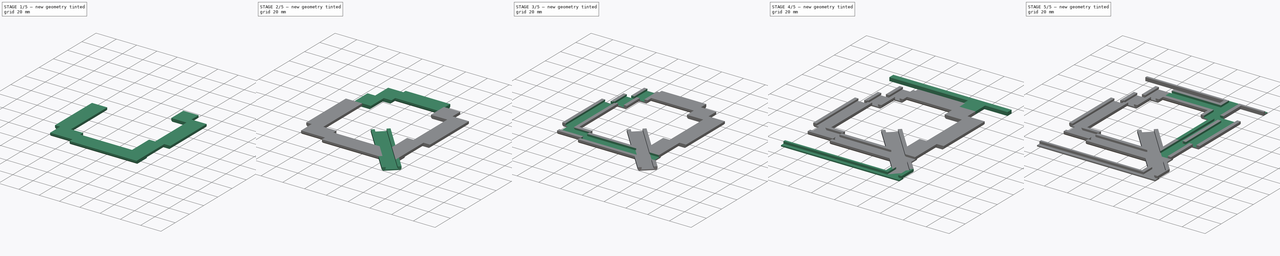
[diagram: build sequence overview — one tinted view per stage of 5, left to right]
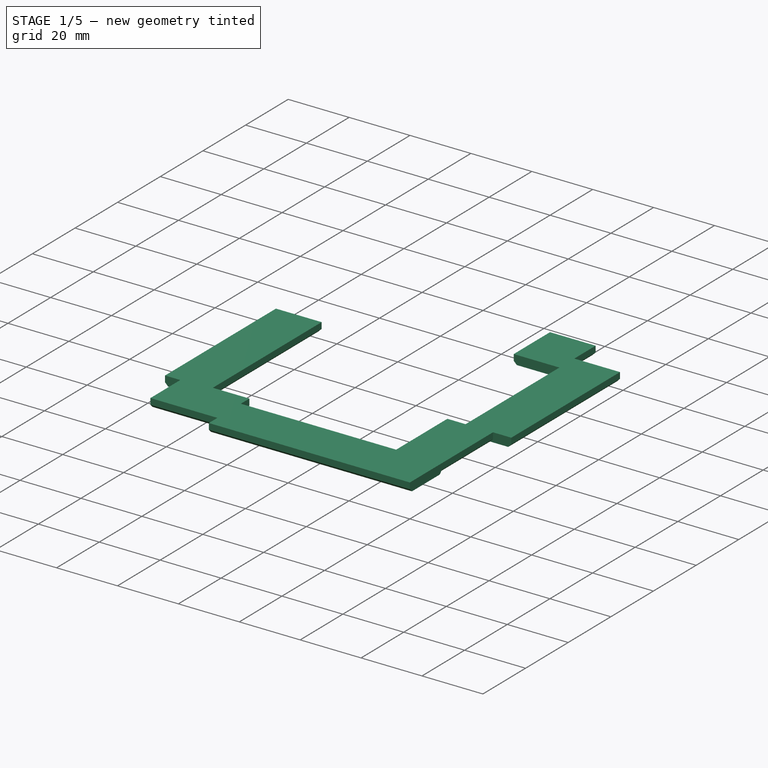
[diagram: stage 1 of 5 — iso view after this stage's code; geometry added in this stage tinted green]
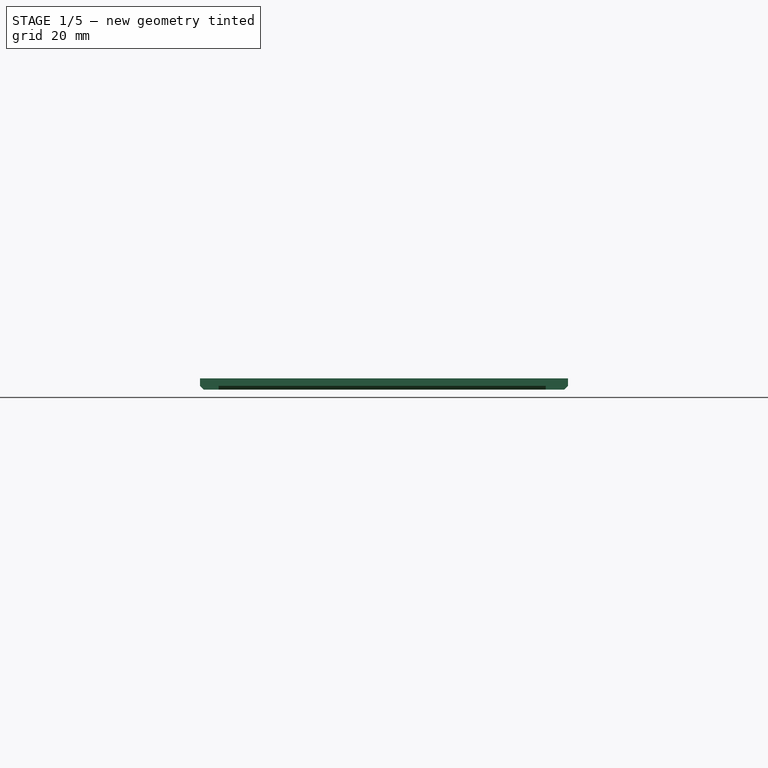
[diagram: stage 1 of 5 — front view after this stage's code; geometry added in this stage tinted green]
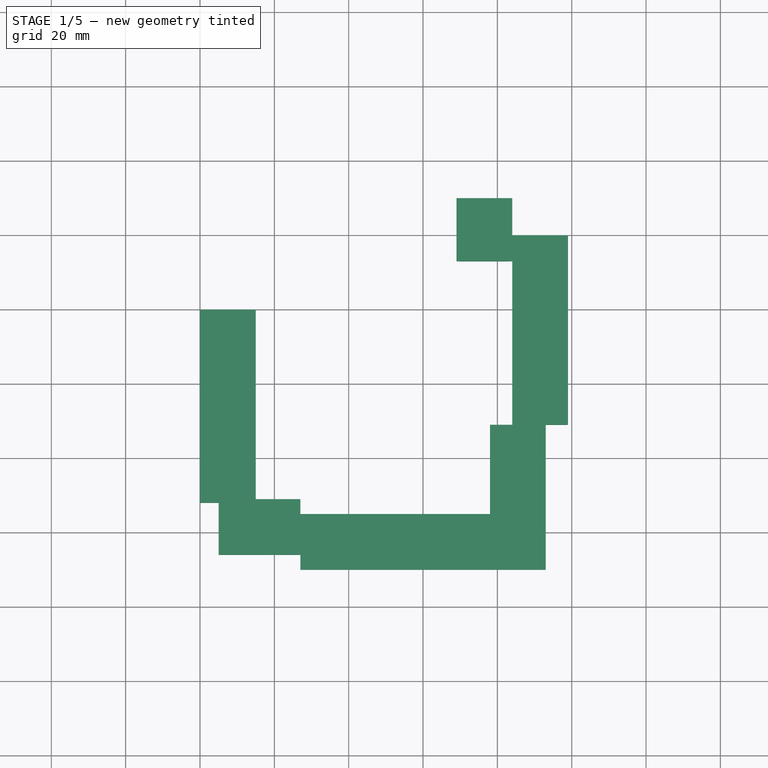
[diagram: stage 1 of 5 — top view after this stage's code; geometry added in this stage tinted green]
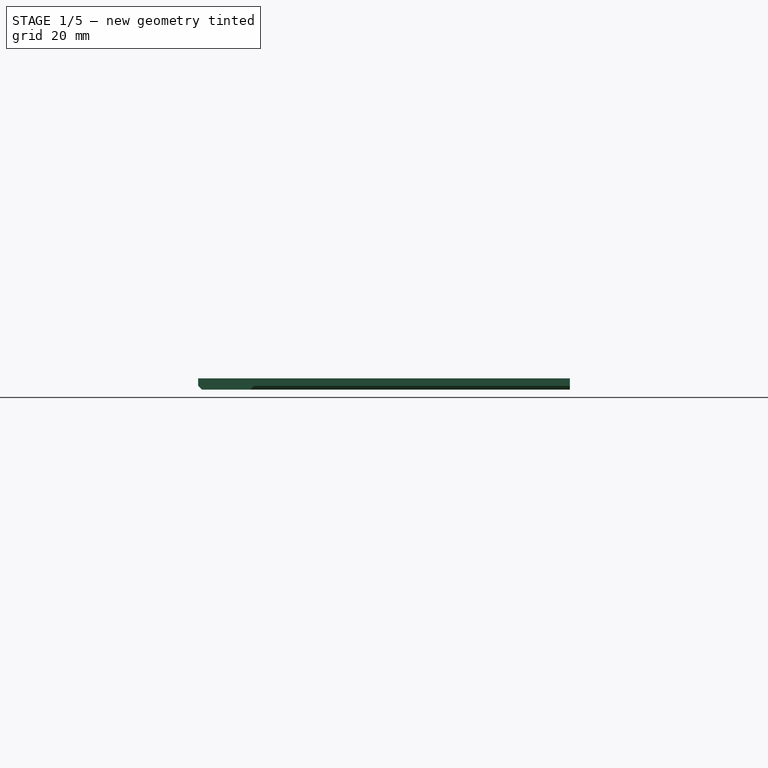
[diagram: stage 1 of 5 — right view after this stage's code; geometry added in this stage tinted green]
FCSTD DOCUMENT  (FreeCAD 0.20R29603 (Git))
Label: neopixelbracket_Q
License: All rights reserved
LicenseURL: http://en.wikipedia.org/wiki/All_rights_reserved
objects: Sketcher::SketchObject×34, PartDesign::Pad×17, PartDesign::Pocket×17, PartDesign::Body×1
note: 103 computed .brp shape members not serialized (recipe doc carries the construction recipe); baked Part::Feature solids carry a one-line shape summary decoded from their .brp

FEATURE [Sketcher::SketchObject] Sketch
  FullyConstrained = true
  MapMode = 5
  Placement = pos=(0,0,0) rot=(1,0,0;1.5708rad)
  Support = -> [XZ_Plane]
  sketch-geometry (6):
    g0: LineSegment StartX=0 StartY=0 StartZ=0 EndX=15 EndY=0 EndZ=0
    g1: LineSegment StartX=15 StartY=0 StartZ=0 EndX=15 EndY=-2 EndZ=0
    g2: LineSegment StartX=15 StartY=-2 StartZ=0 EndX=14 EndY=-3 EndZ=0
    g3: LineSegment StartX=14 StartY=-3 StartZ=0 EndX=1 EndY=-3 EndZ=0
    g4: LineSegment StartX=1 StartY=-3 StartZ=0 EndX=0 EndY=-2 EndZ=0
    g5: LineSegment StartX=0 StartY=-2 StartZ=0 EndX=0 EndY=0 EndZ=0
  constraints (17):
    c: Horizontal(g0)
    c: Coincident(g0,g1)
    c: Vertical(g1)
    c: Coincident(g1,g2)
    c: Coincident(g2,g3)
    c: Horizontal(g3)
    c: Coincident(g3,g4)
    c: Coincident(g4,g5)
    c: Coincident(g5,g0)
    c: Vertical(g5)
    c: DistanceY(g5,g5) = 2
    c: DistanceY(g3,g4) = 1
    c: DistanceX(g4,g3) = 1
    c: DistanceX(g2,g1) = 1
    c: DistanceX(g0,g0) = 15
    c: DistanceY(g2,g1) = 1
    c: Coincident(g0,g-1)
FEATURE [PartDesign::Pad] Pad
  Direction = (0,-1,2e-16)
  Length = 51
  Length2 = 10
  Placement = pos=(0,0,0) rot=(1,0,0;1.5708rad)
  Profile = -> Sketch
  ReferenceAxis = -> Sketch [N_Axis]
  Type = 0
FEATURE [Sketcher::SketchObject] Sketch001
  AttachmentOffset = pos=(0,0,-10) rot=(0,0,1;0rad)
  ExternalGeometry = -> [Pad]
  FullyConstrained = true
  MapMode = 5
  Placement = pos=(5,0,2.2e-15) rot=(0.707107,0,0.707107;3.14159rad)
  Support = -> [Pad]
  sketch-geometry (6):
    g0: LineSegment StartX=1.13e-14 StartY=51 StartZ=0 EndX=1.13e-14 EndY=66 EndZ=0
    g1: LineSegment StartX=1.13e-14 StartY=66 StartZ=0 EndX=-2 EndY=66 EndZ=0
    g2: LineSegment StartX=-2 StartY=66 StartZ=0 EndX=-3 EndY=65 EndZ=0
    g3: LineSegment StartX=-3 StartY=65 StartZ=0 EndX=-3 EndY=52 EndZ=0
    g4: LineSegment StartX=-3 StartY=52 StartZ=0 EndX=-2 EndY=51 EndZ=0
    g5: LineSegment StartX=-2 StartY=51 StartZ=0 EndX=1.13e-14 EndY=51 EndZ=0
  constraints (18):
    c: Vertical(g0)
    c: Coincident(g0,g1)
    c: Horizontal(g1)
    c: Coincident(g1,g2)
    c: Coincident(g2,g3)
    c: Vertical(g3)
    c: Coincident(g3,g4)
    c: Coincident(g4,g5)
    c: Coincident(g5,g0)
    c: Horizontal(g5)
    c: DistanceX(g1,g1) = 2
    c: Coincident(g0,g-3)
    c: Coincident(g4,g-3)
    c: DistanceX(g5,g5) = 2
    c: DistanceX(g3,g4) = 1
    c: DistanceY(g4,g3) = 1
    c: Distance(g0) = 15
    c: DistanceY(g2,g1) = 1
FEATURE [PartDesign::Pad] Pad001
  BaseFeature = -> Pad
  Direction = (1,0,-2e-16)
  Length = 22
  Length2 = 10
  Placement = pos=(0,0,0) rot=(1,0,0;1.5708rad)
  Profile = -> Sketch001
  ReferenceAxis = -> Sketch001 [N_Axis]
  Type = 0
FEATURE [Sketcher::SketchObject] Sketch002
  ExternalGeometry = -> [Pad001]
  FullyConstrained = true
  MapMode = 5
  Placement = pos=(27,0,-7.6e-15) rot=(0.707107,0,0.707107;3.14159rad)
  Support = -> [Pad001]
  sketch-geometry (6):
    g0: LineSegment StartX=1.64e-14 StartY=70 StartZ=0 EndX=1.64e-14 EndY=55 EndZ=0
    g1: LineSegment StartX=1.64e-14 StartY=55 StartZ=0 EndX=-2 EndY=55 EndZ=0
    g2: LineSegment StartX=-2 StartY=55 StartZ=0 EndX=-3 EndY=56 EndZ=0
    g3: LineSegment StartX=-3 StartY=56 StartZ=0 EndX=-3 EndY=69 EndZ=0
    g4: LineSegment StartX=-3 StartY=69 StartZ=0 EndX=-2 EndY=70 EndZ=0
    g5: LineSegment StartX=-2 StartY=70 StartZ=0 EndX=1.64e-14 EndY=70 EndZ=0
  constraints (18):
    c: Vertical(g0)
    c: Coincident(g0,g1)
    c: Horizontal(g1)
    c: Coincident(g1,g2)
    c: Coincident(g2,g3)
    c: Vertical(g3)
    c: Coincident(g3,g4)
    c: Coincident(g4,g5)
    c: Coincident(g5,g0)
    c: Horizontal(g5)
    c: Distance(g0) = 15
    c: Distance(g3) = 13
    c: DistanceX(g2,g1) = 1
    c: DistanceY(g1,g2) = 1
    c: DistanceX(g1,g0) = 2
    c: DistanceX(g4,g0) = 2
    c: DistanceX(g-3,g0) = 0
    c: DistanceY(g-3,g0) = 4
FEATURE [PartDesign::Pad] Pad002
  BaseFeature = -> Pad001
  Direction = (1,0,-2e-16)
  Length = 66
  Length2 = 10
  Placement = pos=(0,0,0) rot=(1,0,0;1.5708rad)
  Profile = -> Sketch002
  ReferenceAxis = -> Sketch002 [N_Axis]
  Type = 0
FEATURE [Sketcher::SketchObject] Sketch003
  AttachmentOffset = pos=(0,0,-1) rot=(0,0,1;0rad)
  ExternalGeometry = -> [Pad002]
  FullyConstrained = true
  MapMode = 5
  Placement = pos=(0,-56,1.23e-14) rot=(-1,0,0;1.5708rad)
  Support = -> [Pad002]
  sketch-geometry (6):
    g0: LineSegment StartX=93 StartY=5.8e-15 StartZ=0 EndX=78 EndY=5.8e-15 EndZ=0
    g1: LineSegment StartX=78 StartY=5.8e-15 StartZ=0 EndX=78 EndY=2 EndZ=0
    g2: LineSegment StartX=78 StartY=2 StartZ=0 EndX=79 EndY=3 EndZ=0
    g3: LineSegment StartX=79 StartY=3 StartZ=0 EndX=92 EndY=3 EndZ=0
    g4: LineSegment StartX=92 StartY=3 StartZ=0 EndX=93 EndY=2 EndZ=0
    g5: LineSegment StartX=93 StartY=2 StartZ=0 EndX=93 EndY=5.8e-15 EndZ=0
  constraints (17):
    c: Horizontal(g0)
    c: Coincident(g0,g1)
    c: Vertical(g1)
    c: Coincident(g1,g2)
    c: Coincident(g2,g3)
    c: Horizontal(g3)
    c: Coincident(g3,g4)
    c: Coincident(g4,g5)
    c: Coincident(g5,g0)
    c: Vertical(g5)
    c: Distance(g0) = 15
    c: Distance(g3) = 13
    c: DistanceY(g1,g2) = 1
    c: Distance(g1) = 2
    c: Distance(g5) = 2
    c: DistanceX(g3,g4) = 1
    c: Coincident(g0,g-3)
FEATURE [Sketcher::SketchObject] Sketch004
  FullyConstrained = true
  MapMode = 5
  Placement = pos=(0,-51,1.12e-14) rot=(1,0,0;1.5708rad)
  Support = -> [Pad002]
  sketch-geometry (6):
    g0: LineSegment StartX=0 StartY=0 StartZ=0 EndX=15 EndY=0 EndZ=0
    g1: LineSegment StartX=15 StartY=0 StartZ=0 EndX=15 EndY=-2 EndZ=0
    g2: LineSegment StartX=15 StartY=-2 StartZ=0 EndX=14 EndY=-3 EndZ=0
    g3: LineSegment StartX=14 StartY=-3 StartZ=0 EndX=1 EndY=-3 EndZ=0
    g4: LineSegment StartX=1 StartY=-3 StartZ=0 EndX=0 EndY=-2 EndZ=0
    g5: LineSegment StartX=0 StartY=-2 StartZ=0 EndX=0 EndY=0 EndZ=0
  constraints (17):
    c: Horizontal(g0)
    c: Coincident(g0,g1)
    c: Vertical(g1)
    c: Coincident(g1,g2)
    c: Coincident(g2,g3)
    c: Horizontal(g3)
    c: Coincident(g3,g4)
    c: Coincident(g4,g5)
    c: Coincident(g5,g0)
    c: Vertical(g5)
    c: Distance(g0) = 15
    c: Distance(g3) = 13
    c: DistanceY(g2,g2) = 1
    c: DistanceX(g2,g1) = 1
    c: DistanceY(g4,g0) = 2
    c: DistanceY(g1,g1) = 2
    c: Coincident(g0,g-1)
FEATURE [PartDesign::Pad] Pad003
  BaseFeature = -> Pad002
  Direction = (0,-1,2e-16)
  Length = 1
  Length2 = 10
  Placement = pos=(0,0,0) rot=(1,0,0;1.5708rad)
  Profile = -> Sketch004
  ReferenceAxis = -> Sketch004 [N_Axis]
  Type = 0
FEATURE [PartDesign::Pad] Pad004
  BaseFeature = -> Pad003
  Direction = (0,1,2e-16)
  Length = 25
  Length2 = 10
  Placement = pos=(0,0,0) rot=(1,0,0;1.5708rad)
  Profile = -> Sketch003
  ReferenceAxis = -> Sketch003 [N_Axis]
  Type = 0
FEATURE [Sketcher::SketchObject] Sketch005
  ExternalGeometry = -> [Pad004]
  FullyConstrained = true
  MapMode = 5
  Placement = pos=(0,-31,0) rot=(-1,0,0;1.5708rad)
  Support = -> [Pad004]
  sketch-geometry (6):
    g0: LineSegment StartX=84 StartY=5.8e-15 StartZ=0 EndX=99 EndY=5.8e-15 EndZ=0
    g1: LineSegment StartX=99 StartY=5.8e-15 StartZ=0 EndX=99 EndY=2 EndZ=0
    g2: LineSegment StartX=99 StartY=2 StartZ=0 EndX=98 EndY=3 EndZ=0
    g3: LineSegment StartX=98 StartY=3 StartZ=0 EndX=85 EndY=3 EndZ=0
    g4: LineSegment StartX=85 StartY=3 StartZ=0 EndX=84 EndY=2 EndZ=0
    g5: LineSegment StartX=84 StartY=2 StartZ=0 EndX=84 EndY=5.8e-15 EndZ=0
  constraints (18):
    c: Horizontal(g0)
    c: Coincident(g0,g1)
    c: Vertical(g1)
    c: Coincident(g1,g2)
    c: Coincident(g2,g3)
    c: Horizontal(g3)
    c: Coincident(g3,g4)
    c: Coincident(g4,g5)
    c: Coincident(g5,g0)
    c: Vertical(g5)
    c: Distance(g0) = 15
    c: Distance(g3) = 13
    c: DistanceY(g1,g1) = 2
    c: DistanceY(g5,g5) = 2
    c: DistanceY(g4,g3) = 1
    c: DistanceX(g4,g3) = 1
    c: DistanceX(g-3,g0) = 6
    c: DistanceY(g-3,g0) = 0
FEATURE [PartDesign::Pad] Pad005
  BaseFeature = -> Pad004
  Direction = (0,1,-2e-16)
  Length = 51
  Length2 = 10
  Placement = pos=(0,0,0) rot=(1,0,0;1.5708rad)
  Profile = -> Sketch005
  ReferenceAxis = -> Sketch005 [N_Axis]
  Type = 0
FEATURE [Sketcher::SketchObject] Sketch006
  AttachmentOffset = pos=(0,0,-7) rot=(0,0,1;0rad)
  ExternalGeometry = -> [Pad005]
  FullyConstrained = true
  MapMode = 5
  Placement = pos=(0,13,-1.6e-15) rot=(-1,0,0;1.5708rad)
  Support = -> [Pad005]
  sketch-geometry (6):
    g0: LineSegment StartX=69 StartY=1.02e-14 StartZ=0 EndX=84 EndY=1.02e-14 EndZ=0
    g1: LineSegment StartX=84 StartY=1.02e-14 StartZ=0 EndX=84 EndY=2 EndZ=0
    g2: LineSegment StartX=84 StartY=2 StartZ=0 EndX=83 EndY=3 EndZ=0
    g3: LineSegment StartX=83 StartY=3 StartZ=0 EndX=70 EndY=3 EndZ=0
    g4: LineSegment StartX=70 StartY=3 StartZ=0 EndX=69 EndY=2 EndZ=0
    g5: LineSegment StartX=69 StartY=2 StartZ=0 EndX=69 EndY=1.02e-14 EndZ=0
  constraints (17):
    c: Horizontal(g0)
    c: Coincident(g0,g1)
    c: Vertical(g1)
    c: Coincident(g1,g2)
    c: Coincident(g2,g3)
    c: Horizontal(g3)
    c: Coincident(g3,g4)
    c: Coincident(g4,g5)
    c: Coincident(g5,g0)
    c: Vertical(g5)
    c: Distance(g0) = 15
    c: Distance(g3) = 13
    c: DistanceY(g5,g5) = 2
    c: DistanceY(g1,g1) = 2
    c: DistanceX(g2,g1) = 1
    c: DistanceY(g1,g2) = 1
    c: Coincident(g0,g-3)
FEATURE [PartDesign::Pad] Pad006
  BaseFeature = -> Pad005
  Direction = (0,1,-2e-16)
  Length = 17
  Length2 = 10
  Placement = pos=(0,0,0) rot=(1,0,0;1.5708rad)
  Profile = -> Sketch006
  ReferenceAxis = -> Sketch006 [N_Axis]
  Type = 0
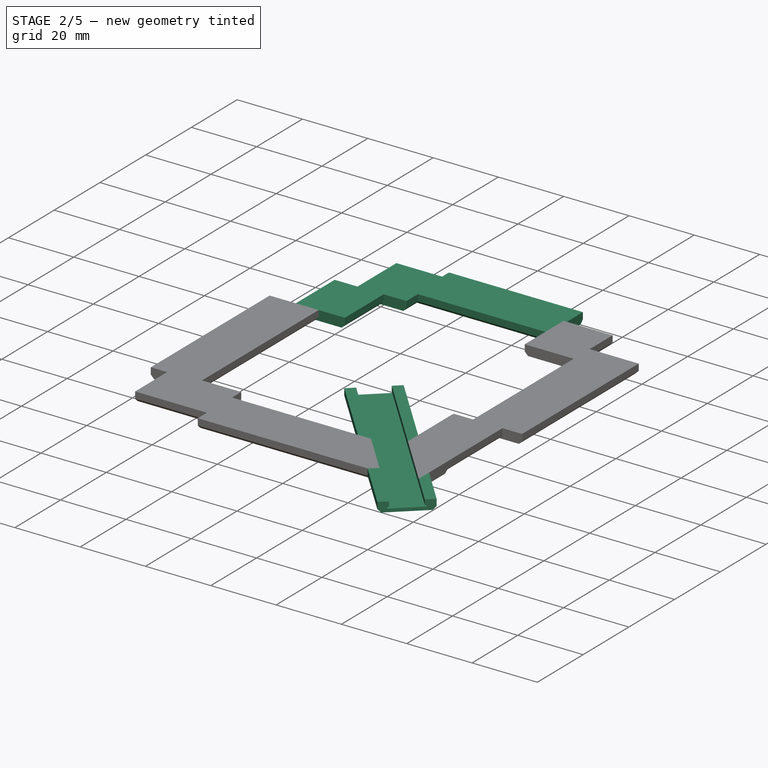
[diagram: stage 2 of 5 — iso view after this stage's code; geometry added in this stage tinted green]
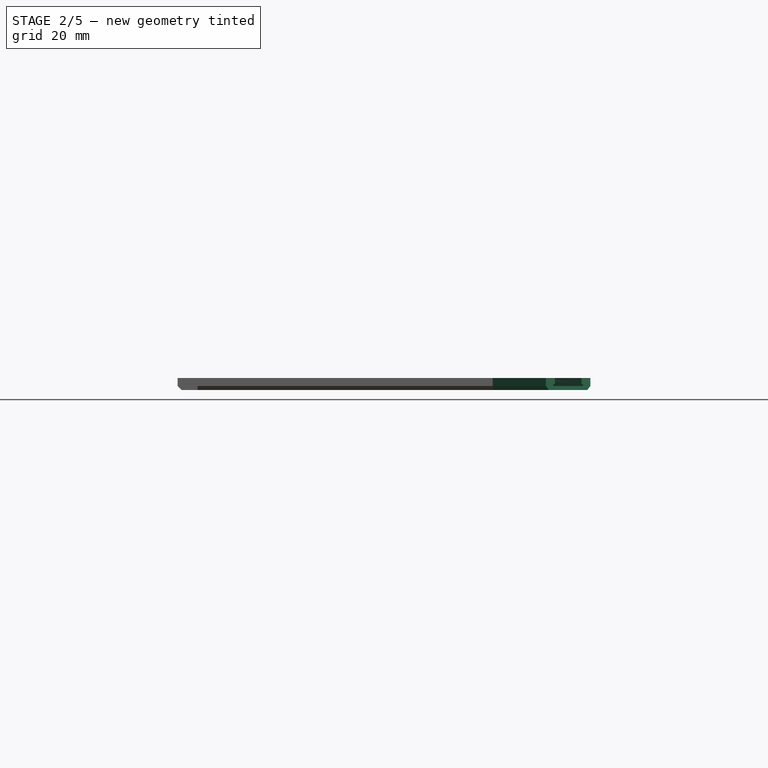
[diagram: stage 2 of 5 — front view after this stage's code; geometry added in this stage tinted green]
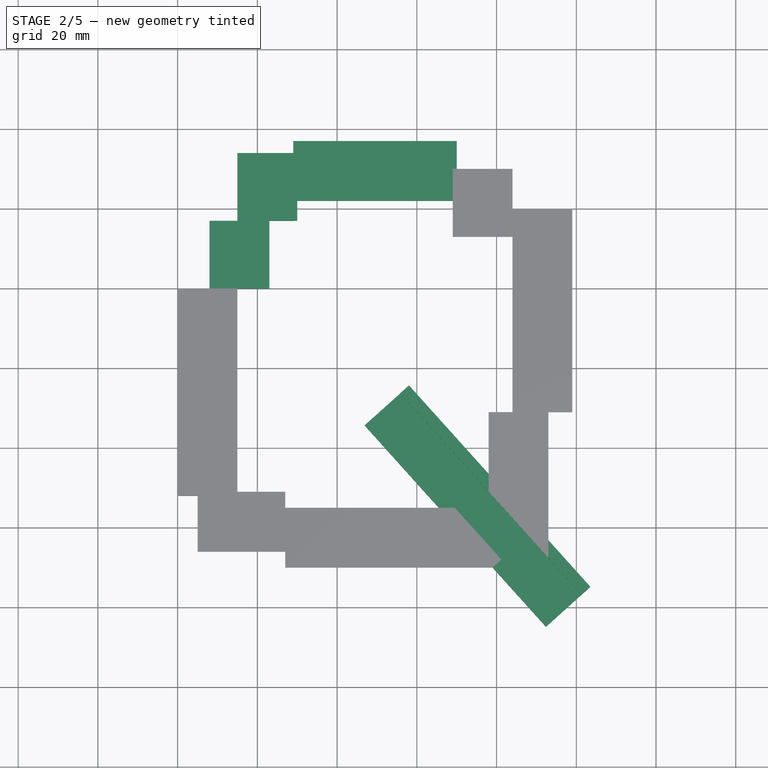
[diagram: stage 2 of 5 — top view after this stage's code; geometry added in this stage tinted green]
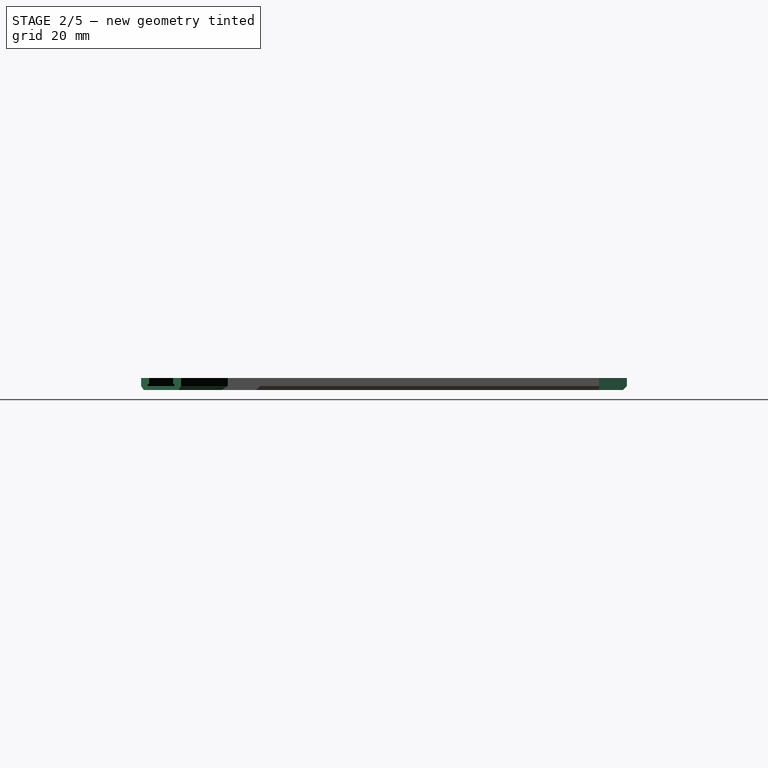
[diagram: stage 2 of 5 — right view after this stage's code; geometry added in this stage tinted green]
FEATURE [Sketcher::SketchObject] Sketch007
  ExternalGeometry = -> [Pad006]
  FullyConstrained = true
  MapMode = 5
  Placement = pos=(0,0,0) rot=(-1,0,0;1.5708rad)
  Support = -> [Pad006]
  sketch-geometry (6):
    g0: LineSegment StartX=8 StartY=0 StartZ=0 EndX=23 EndY=0 EndZ=0
    g1: LineSegment StartX=23 StartY=0 StartZ=0 EndX=23 EndY=2 EndZ=0
    g2: LineSegment StartX=23 StartY=2 StartZ=0 EndX=22 EndY=3 EndZ=0
    g3: LineSegment StartX=22 StartY=3 StartZ=0 EndX=9 EndY=3 EndZ=0
    g4: LineSegment StartX=9 StartY=3 StartZ=0 EndX=8 EndY=2 EndZ=0
    g5: LineSegment StartX=8 StartY=2 StartZ=0 EndX=8 EndY=0 EndZ=0
  constraints (18):
    c: Horizontal(g0)
    c: Coincident(g0,g1)
    c: Vertical(g1)
    c: Coincident(g1,g2)
    c: Coincident(g2,g3)
    c: Horizontal(g3)
    c: Coincident(g3,g4)
    c: Coincident(g4,g5)
    c: Coincident(g5,g0)
    c: Vertical(g5)
    c: Distance(g0) = 15
    c: Distance(g3) = 13
    c: DistanceX(g2,g1) = 1
    c: DistanceY(g1,g2) = 1
    c: DistanceY(g0,g1) = 2
    c: DistanceY(g0,g4) = 2
    c: DistanceX(g-3,g0) = 8
    c: DistanceY(g-3,g0) = 0
FEATURE [PartDesign::Pad] Pad007
  BaseFeature = -> Pad006
  Direction = (0,1,-2e-16)
  Length = 17
  Length2 = 10
  Placement = pos=(0,0,0) rot=(1,0,0;1.5708rad)
  Profile = -> Sketch007
  ReferenceAxis = -> Sketch007 [N_Axis]
  Type = 0
FEATURE [Sketcher::SketchObject] Sketch008
  ExternalGeometry = -> [Pad007]
  FullyConstrained = true
  MapMode = 5
  Placement = pos=(0,17,-3.7e-15) rot=(-1,0,0;1.5708rad)
  Support = -> [Pad007]
  sketch-geometry (6):
    g0: LineSegment StartX=15 StartY=0 StartZ=0 EndX=30 EndY=0 EndZ=0
    g1: LineSegment StartX=30 StartY=0 StartZ=0 EndX=30 EndY=2 EndZ=0
    g2: LineSegment StartX=30 StartY=2 StartZ=0 EndX=29 EndY=3 EndZ=0
    g3: LineSegment StartX=29 StartY=3 StartZ=0 EndX=16 EndY=3 EndZ=0
    g4: LineSegment StartX=16 StartY=3 StartZ=0 EndX=15 EndY=2 EndZ=0
    g5: LineSegment StartX=15 StartY=2 StartZ=0 EndX=15 EndY=0 EndZ=0
  constraints (18):
    c: Horizontal(g0)
    c: Coincident(g0,g1)
    c: Vertical(g1)
    c: Coincident(g1,g2)
    c: Coincident(g2,g3)
    c: Horizontal(g3)
    c: Coincident(g3,g4)
    c: Coincident(g4,g5)
    c: Coincident(g5,g0)
    c: Vertical(g5)
    c: Distance(g0) = 15
    c: Distance(g3) = 13
    c: DistanceY(g0,g1) = 2
    c: DistanceY(g1,g2) = 1
    c: DistanceX(g2,g1) = 1
    c: DistanceY(g0,g4) = 2
    c: DistanceX(g-3,g0) = 7
    c: DistanceY(g-3,g0) = 0
FEATURE [PartDesign::Pad] Pad008
  BaseFeature = -> Pad007
  Direction = (0,1,-2e-16)
  Length = 17
  Length2 = 10
  Placement = pos=(0,0,0) rot=(1,0,0;1.5708rad)
  Profile = -> Sketch008
  ReferenceAxis = -> Sketch008 [N_Axis]
  Type = 0
FEATURE [Sketcher::SketchObject] Sketch009
  AttachmentOffset = pos=(0,0,-1) rot=(0,0,1;0rad)
  ExternalGeometry = -> [Pad008]
  FullyConstrained = true
  MapMode = 5
  Placement = pos=(29,0,2e-16) rot=(0.707107,0,0.707107;3.14159rad)
  Support = -> [Pad008]
  sketch-geometry (6):
    g0: LineSegment StartX=-5.3e-15 StartY=-37 StartZ=0 EndX=-5.3e-15 EndY=-22 EndZ=0
    g1: LineSegment StartX=-5.3e-15 StartY=-22 StartZ=0 EndX=-2 EndY=-22 EndZ=0
    g2: LineSegment StartX=-2 StartY=-22 StartZ=0 EndX=-3 EndY=-23 EndZ=0
    g3: LineSegment StartX=-3 StartY=-23 StartZ=0 EndX=-3 EndY=-36 EndZ=0
    g4: LineSegment StartX=-3 StartY=-36 StartZ=0 EndX=-2 EndY=-37 EndZ=0
    g5: LineSegment StartX=-2 StartY=-37 StartZ=0 EndX=-5.3e-15 EndY=-37 EndZ=0
  constraints (18):
    c: Vertical(g0)
    c: Coincident(g0,g1)
    c: Horizontal(g1)
    c: Coincident(g1,g2)
    c: Coincident(g2,g3)
    c: Vertical(g3)
    c: Coincident(g3,g4)
    c: Coincident(g4,g5)
    c: Coincident(g5,g0)
    c: Horizontal(g5)
    c: Distance(g0) = 15
    c: Distance(g3) = 13
    c: DistanceY(g2,g1) = 1
    c: DistanceX(g2,g1) = 1
    c: DistanceX(g1,g0) = 2
    c: DistanceX(g4,g0) = 2
    c: DistanceY(g0,g-3) = 3
    c: DistanceX(g-3,g0) = 0
FEATURE [PartDesign::Pad] Pad009
  BaseFeature = -> Pad008
  Direction = (1,0,-2e-16)
  Length = 41
  Length2 = 10
  Placement = pos=(0,0,0) rot=(1,0,0;1.5708rad)
  Profile = -> Sketch009
  ReferenceAxis = -> Sketch009 [N_Axis]
  Type = 0
FEATURE [Sketcher::SketchObject] Sketch010
  AttachmentOffset = pos=(0,0,-7) rot=(0,0,1;0rad)
  ExternalGeometry = -> [Pad009]
  FullyConstrained = true
  MapMode = 5
  Placement = pos=(0,13,-1.6e-15) rot=(-1,0,0;1.5708rad)
  Support = -> [Pad009]
  sketch-geometry (4):
    g0: LineSegment StartX=83 StartY=3 StartZ=0 EndX=85 EndY=3 EndZ=0
    g1: LineSegment StartX=85 StartY=3 StartZ=0 EndX=85 EndY=2 EndZ=0
    g2: LineSegment StartX=85 StartY=2 StartZ=0 EndX=83 EndY=2 EndZ=0
    g3: LineSegment StartX=83 StartY=2 StartZ=0 EndX=83 EndY=3 EndZ=0
  constraints (12):
    c: Coincident(g0,g1)
    c: Coincident(g1,g2)
    c: Coincident(g2,g3)
    c: Coincident(g3,g0)
    c: Horizontal(g0)
    c: Horizontal(g2)
    c: Vertical(g1)
    c: Vertical(g3)
    c: Distance(g0) = 2
    c: DistanceY(g1,g1) = 1
    c: DistanceX(g-3,g1) = 1
    c: DistanceY(g-3,g1) = 0
FEATURE [PartDesign::Pad] Pad010
  BaseFeature = -> Pad009
  Direction = (0,1,-2e-16)
  Length = 7
  Length2 = 10
  Placement = pos=(0,0,0) rot=(1,0,0;1.5708rad)
  Profile = -> Sketch010
  ReferenceAxis = -> Sketch010 [N_Axis]
  Type = 0
FEATURE [Sketcher::SketchObject] Sketch011
  ExternalGeometry = -> [Pad010]
  FullyConstrained = true
  MapMode = 5
  Placement = pos=(0,0,1.49e-14) rot=(0,0,1;3.14159rad)
  Support = -> [Pad010]
  sketch-geometry (3):
    g0: LineSegment StartX=-90.1472 StartY=70 StartZ=0 EndX=-79 EndY=70 EndZ=0
    g1: LineSegment StartX=-79 StartY=70 StartZ=0 EndX=-90.1472 EndY=59.963 EndZ=0
    g2: LineSegment StartX=-90.1472 StartY=59.963 StartZ=0 EndX=-90.1472 EndY=70 EndZ=0
  constraints (9):
    c: Horizontal(g0)
    c: Coincident(g0,g1)
    c: Coincident(g1,g2)
    c: Coincident(g2,g0)
    c: Vertical(g2)
    c: DistanceX(g0,g-4) = 52
    c: Angle(g0,g1) = 0.733038
    c: DistanceY(g0,g-4) = 0
    c: Distance(g1) = 15
FEATURE [PartDesign::Pocket] Pocket
  BaseFeature = -> Pad010
  Direction = (-2e-16,-7e-16,-1)
  Length = 1
  Length2 = 5
  Placement = pos=(0,0,0) rot=(1,0,0;1.5708rad)
  Profile = -> Sketch011
  ReferenceAxis = -> Sketch011 [N_Axis]
  Type = 0
FEATURE [Sketcher::SketchObject] Sketch012
  AttachmentOffset = pos=(0,0,-48) rot=(0,0,1;0rad)
  ExternalGeometry = -> [Pocket]
  FullyConstrained = true
  MapMode = 5
  Placement = pos=(38.0611,-42.2712,1.53e-14) rot=(0.87885,0.337359,0.337359;1.69958rad)
  Support = -> [Pocket]
  sketch-geometry (6):
    g0: LineSegment StartX=11.8693 StartY=1.11e-14 StartZ=0 EndX=26.8693 EndY=1.11e-14 EndZ=0
    g1: LineSegment StartX=26.8693 StartY=1.11e-14 StartZ=0 EndX=26.8693 EndY=-2 EndZ=0
    g2: LineSegment StartX=26.8693 StartY=-2 StartZ=0 EndX=25.8693 EndY=-3 EndZ=0
    g3: LineSegment StartX=25.8693 StartY=-3 StartZ=0 EndX=12.8693 EndY=-3 EndZ=0
    g4: LineSegment StartX=12.8693 StartY=-3 StartZ=0 EndX=11.8693 EndY=-2 EndZ=0
    g5: LineSegment StartX=11.8693 StartY=-2 StartZ=0 EndX=11.8693 EndY=1.11e-14 EndZ=0
  constraints (17):
    c: Horizontal(g0)
    c: Coincident(g0,g1)
    c: Vertical(g1)
    c: Coincident(g1,g2)
    c: Coincident(g2,g3)
    c: Horizontal(g3)
    c: Coincident(g3,g4)
    c: Coincident(g4,g5)
    c: Coincident(g5,g0)
    c: Vertical(g5)
    c: Distance(g0) = 15
    c: Distance(g3) = 13
    c: DistanceY(g1,g1) = 2
    c: DistanceY(g5,g5) = 2
    c: DistanceY(g3,g4) = 1
    c: DistanceX(g4,g3) = 1
    c: Coincident(g0,g-3)
FEATURE [PartDesign::Pad] Pad011
  BaseFeature = -> Pocket
  Direction = (0.669131,-0.743145,6e-16)
  Length = 68
  Length2 = 10
  Placement = pos=(0,0,0) rot=(1,0,0;1.5708rad)
  Profile = -> Sketch012
  ReferenceAxis = -> Sketch012 [N_Axis]
  Type = 0
FEATURE [Sketcher::SketchObject] Sketch013
  ExternalGeometry = -> [Pad011]
  FullyConstrained = true
  MapMode = 5
  Placement = pos=(83.562,-92.805,1.911e-13) rot=(0.87885,0.337359,0.337359;1.69958rad)
  Support = -> [Pad011]
  sketch-geometry (8):
    g0: LineSegment StartX=14.8693 StartY=-1.117e-13 StartZ=0 EndX=23.8693 EndY=-1.117e-13 EndZ=0
    g1: LineSegment StartX=23.8693 StartY=-1.117e-13 StartZ=0 EndX=23.8693 EndY=-1.5 EndZ=0
    g2: LineSegment StartX=23.8693 StartY=-1.5 StartZ=0 EndX=24.3693 EndY=-1.5 EndZ=0
    g3: LineSegment StartX=24.3693 StartY=-1.5 StartZ=0 EndX=24.3693 EndY=-2 EndZ=0
    g4: LineSegment StartX=24.3693 StartY=-2 StartZ=0 EndX=14.3693 EndY=-2 EndZ=0
    g5: LineSegment StartX=14.3693 StartY=-2 StartZ=0 EndX=14.3693 EndY=-1.5 EndZ=0
    g6: LineSegment StartX=14.3693 StartY=-1.5 StartZ=0 EndX=14.8693 EndY=-1.5 EndZ=0
    g7: LineSegment StartX=14.8693 StartY=-1.5 StartZ=0 EndX=14.8693 EndY=-1.117e-13 EndZ=0
  constraints (24):
    c: Horizontal(g0)
    c: Coincident(g0,g1)
    c: Vertical(g1)
    c: Coincident(g1,g2)
    c: Coincident(g2,g3)
    c: Coincident(g3,g4)
    c: Horizontal(g4)
    c: Coincident(g4,g5)
    c: Vertical(g5)
    c: Coincident(g5,g6)
    c: Coincident(g6,g7)
    c: Coincident(g7,g0)
    c: Vertical(g7)
    c: Horizontal(g6)
    c: Horizontal(g2)
    c: Distance(g4) = 10
    c: Vertical(g3)
    c: DistanceY(g3,g3) = 0.5
    c: DistanceY(g5,g5) = 0.5
    c: DistanceX(g1,g2) = 0.5
    c: DistanceX(g6,g6) = 0.5
    c: DistanceY(g1,g0) = 1.5
    c: DistanceX(g-3,g0) = 3
    c: DistanceY(g-3,g0) = 0
FEATURE [PartDesign::Pocket] Pocket001
  BaseFeature = -> Pad011
  Direction = (-0.669131,0.743145,-1.6e-15)
  Length = 68
  Length2 = 5
  Placement = pos=(0,0,0) rot=(1,0,0;1.5708rad)
  Profile = -> Sketch013
  ReferenceAxis = -> Sketch013 [N_Axis]
  Type = 0
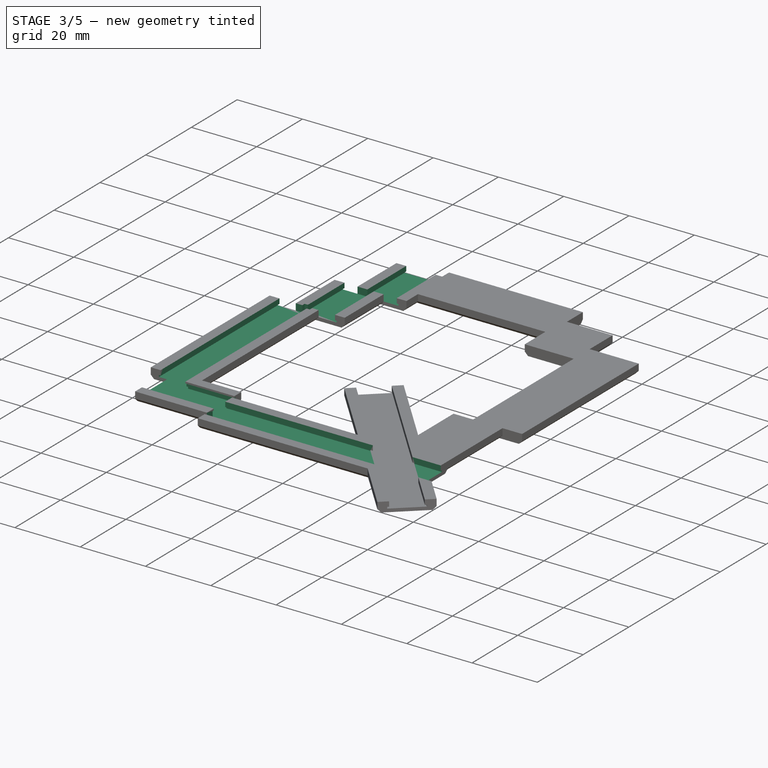
[diagram: stage 3 of 5 — iso view after this stage's code; geometry added in this stage tinted green]
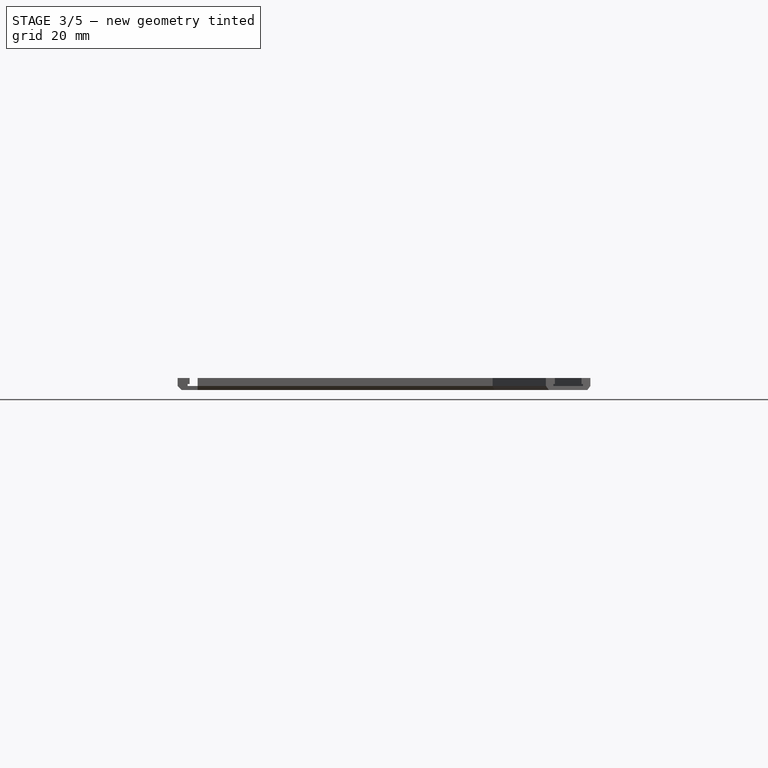
[diagram: stage 3 of 5 — front view after this stage's code; geometry added in this stage tinted green]
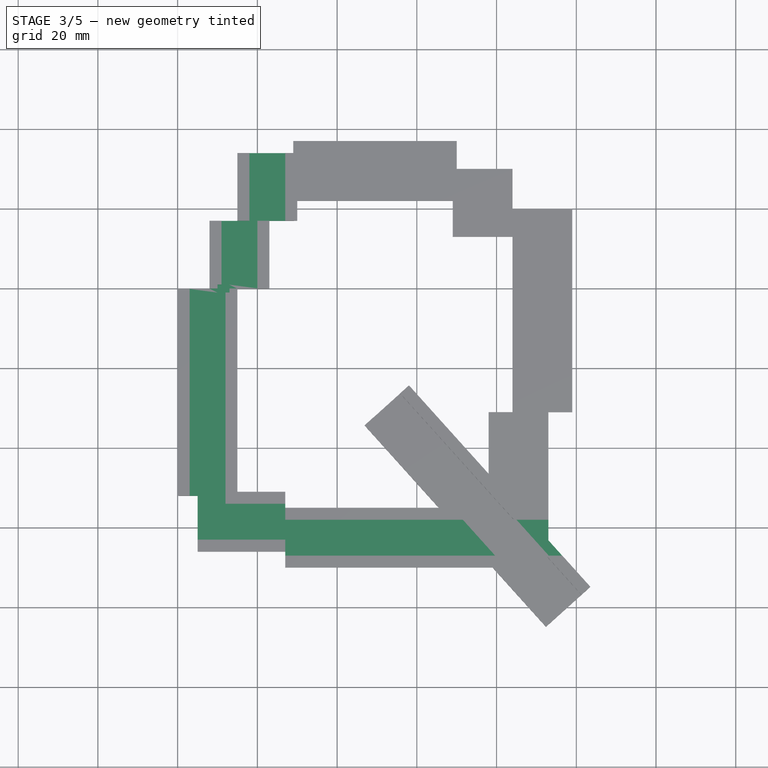
[diagram: stage 3 of 5 — top view after this stage's code; geometry added in this stage tinted green]
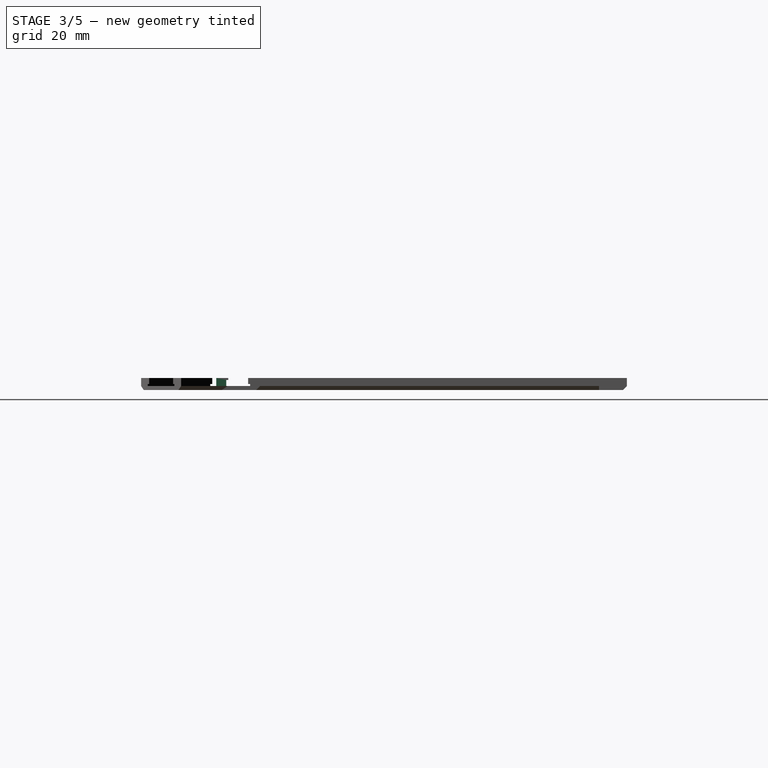
[diagram: stage 3 of 5 — right view after this stage's code; geometry added in this stage tinted green]
FEATURE [Sketcher::SketchObject] Sketch014
  ExternalGeometry = -> [Pocket001]
  FullyConstrained = true
  MapMode = 5
  Placement = pos=(27,0,0) rot=(0.707107,0,-0.707107;3.14159rad)
  Support = -> [Pocket001]
  sketch-geometry (8):
    g0: LineSegment StartX=-4.71e-14 StartY=67 StartZ=0 EndX=1.5 EndY=67 EndZ=0
    g1: LineSegment StartX=1.5 StartY=67 StartZ=0 EndX=1.5 EndY=67.5 EndZ=0
    g2: LineSegment StartX=1.5 StartY=67.5 StartZ=0 EndX=2 EndY=67.5 EndZ=0
    g3: LineSegment StartX=2 StartY=67.5 StartZ=0 EndX=2 EndY=57.5 EndZ=0
    g4: LineSegment StartX=2 StartY=57.5 StartZ=0 EndX=1.5 EndY=57.5 EndZ=0
    g5: LineSegment StartX=1.5 StartY=57.5 StartZ=0 EndX=1.5 EndY=58 EndZ=0
    g6: LineSegment StartX=1.5 StartY=58 StartZ=0 EndX=-4.71e-14 EndY=58 EndZ=0
    g7: LineSegment StartX=-4.71e-14 StartY=58 StartZ=0 EndX=-4.71e-14 EndY=67 EndZ=0
  constraints (24):
    c: Horizontal(g0)
    c: Coincident(g0,g1)
    c: Coincident(g1,g2)
    c: Horizontal(g2)
    c: Coincident(g2,g3)
    c: Vertical(g3)
    c: Coincident(g3,g4)
    c: Horizontal(g4)
    c: Coincident(g4,g5)
    c: Vertical(g5)
    c: Coincident(g5,g6)
    c: Coincident(g6,g7)
    c: Coincident(g7,g0)
    c: Vertical(g7)
    c: Vertical(g1)
    c: Distance(g3) = 10
    c: DistanceX(g2,g2) = 0.5
    c: DistanceX(g0,g0) = 1.5
    c: DistanceY(g1,g1) = 0.5
    c: DistanceY(g5,g5) = 0.5
    c: Horizontal(g6)
    c: DistanceX(g4,g4) = 0.5
    c: DistanceY(g0,g-3) = 3
    c: DistanceX(g0,g-3) = 0
FEATURE [PartDesign::Pocket] Pocket002
  BaseFeature = -> Pocket001
  Direction = (1,0,2e-16)
  Length = 70
  Length2 = 5
  Placement = pos=(0,0,0) rot=(1,0,0;1.5708rad)
  Profile = -> Sketch014
  ReferenceAxis = -> Sketch014 [N_Axis]
  Type = 0
FEATURE [Sketcher::SketchObject] Sketch015
  ExternalGeometry = -> [Pocket002]
  FullyConstrained = true
  MapMode = 5
  Placement = pos=(5,0,-1.4e-15) rot=(-0.707107,0,0.707107;3.14159rad)
  Support = -> [Pocket002]
  sketch-geometry (8):
    g0: LineSegment StartX=-5.86e-14 StartY=63 StartZ=0 EndX=0.5 EndY=63 EndZ=0
    g1: LineSegment StartX=0.5 StartY=63 StartZ=0 EndX=0.5 EndY=63.5 EndZ=0
    g2: LineSegment StartX=0.5 StartY=63.5 StartZ=0 EndX=2 EndY=63.5 EndZ=0
    g3: LineSegment StartX=2 StartY=63.5 StartZ=0 EndX=2 EndY=53.5 EndZ=0
    g4: LineSegment StartX=2 StartY=53.5 StartZ=0 EndX=0.5 EndY=53.5 EndZ=0
    g5: LineSegment StartX=0.5 StartY=53.5 StartZ=0 EndX=0.5 EndY=54 EndZ=0
    g6: LineSegment StartX=0.5 StartY=54 StartZ=0 EndX=-5.86e-14 EndY=54 EndZ=0
    g7: LineSegment StartX=-5.86e-14 StartY=54 StartZ=0 EndX=-5.86e-14 EndY=63 EndZ=0
  constraints (24):
    c: Horizontal(g0)
    c: Coincident(g0,g1)
    c: Vertical(g1)
    c: Coincident(g1,g2)
    c: Horizontal(g2)
    c: Coincident(g2,g3)
    c: Vertical(g3)
    c: Coincident(g3,g4)
    c: Horizontal(g4)
    c: Coincident(g4,g5)
    c: Vertical(g5)
    c: Coincident(g5,g6)
    c: Horizontal(g6)
    c: Coincident(g6,g7)
    c: Coincident(g7,g0)
    c: Vertical(g7)
    c: Distance(g3) = 10
    c: DistanceY(g0,g1) = 0.5
    c: DistanceY(g4,g5) = 0.5
    c: DistanceX(g1,g2) = 1.5
    c: DistanceX(g0,g0) = 0.5
    c: DistanceX(g4,g3) = 1.5
    c: DistanceY(g0,g-3) = 3
    c: DistanceX(g-3,g0) = 0
FEATURE [PartDesign::Pocket] Pocket003
  BaseFeature = -> Pocket002
  Direction = (1,0,-2e-16)
  Length = 22
  Length2 = 5
  Placement = pos=(0,0,0) rot=(1,0,0;1.5708rad)
  Profile = -> Sketch015
  ReferenceAxis = -> Sketch015 [N_Axis]
  Type = 0
FEATURE [Sketcher::SketchObject] Sketch016
  FullyConstrained = true
  MapMode = 5
  Placement = pos=(0,0,0) rot=(-1,0,0;1.5708rad)
  Support = -> [Pocket003]
  sketch-geometry (8):
    g0: LineSegment StartX=2.5 StartY=2 StartZ=0 EndX=12.5 EndY=2 EndZ=0
    g1: LineSegment StartX=12.5 StartY=2 StartZ=0 EndX=12.5 EndY=1.5 EndZ=0
    g2: LineSegment StartX=12.5 StartY=1.5 StartZ=0 EndX=12 EndY=1.5 EndZ=0
    g3: LineSegment StartX=12 StartY=1.5 StartZ=0 EndX=12 EndY=0 EndZ=0
    g4: LineSegment StartX=12 StartY=0 StartZ=0 EndX=3 EndY=0 EndZ=0
    g5: LineSegment StartX=3 StartY=0 StartZ=0 EndX=3 EndY=1.5 EndZ=0
    g6: LineSegment StartX=3 StartY=1.5 StartZ=0 EndX=2.5 EndY=1.5 EndZ=0
    g7: LineSegment StartX=2.5 StartY=1.5 StartZ=0 EndX=2.5 EndY=2 EndZ=0
  constraints (24):
    c: Horizontal(g0)
    c: Coincident(g0,g1)
    c: Coincident(g1,g2)
    c: Coincident(g2,g3)
    c: Vertical(g3)
    c: Coincident(g3,g4)
    c: Horizontal(g4)
    c: Coincident(g4,g5)
    c: Coincident(g5,g6)
    c: Coincident(g6,g7)
    c: Coincident(g7,g0)
    c: Vertical(g7)
    c: Vertical(g1)
    c: Vertical(g5)
    c: Horizontal(g2)
    c: Horizontal(g6)
    c: Distance(g0) = 10
    c: DistanceX(g2,g2) = 0.5
    c: DistanceX(g6,g6) = 0.5
    c: DistanceY(g7,g7) = 0.5
    c: DistanceY(g3,g3) = 1.5
    c: DistanceY(g1,g1) = 0.5
    c: DistanceX(g-1,g4) = 3
    c: DistanceY(g-1,g4) = 0
FEATURE [PartDesign::Pocket] Pocket004
  BaseFeature = -> Pocket003
  Direction = (0,-1,1.1e-15)
  Length = 54
  Length2 = 5
  Placement = pos=(0,0,0) rot=(1,0,0;1.5708rad)
  Profile = -> Sketch016
  ReferenceAxis = -> Sketch016 [N_Axis]
  Type = 0
FEATURE [Sketcher::SketchObject] Sketch017
  ExternalGeometry = -> [Pocket004]
  FullyConstrained = true
  MapMode = 5
  Placement = pos=(0,17,-3.7e-15) rot=(-1,0,0;1.5708rad)
  Support = -> [Pocket004]
  sketch-geometry (8):
    g0: LineSegment StartX=11 StartY=-1.6e-15 StartZ=0 EndX=11 EndY=1.5 EndZ=0
    g1: LineSegment StartX=11 StartY=1.5 StartZ=0 EndX=10.5 EndY=1.5 EndZ=0
    g2: LineSegment StartX=10.5 StartY=1.5 StartZ=0 EndX=10.5 EndY=2 EndZ=0
    g3: LineSegment StartX=10.5 StartY=2 StartZ=0 EndX=20.5 EndY=2 EndZ=0
    g4: LineSegment StartX=20.5 StartY=2 StartZ=0 EndX=20.5 EndY=1.5 EndZ=0
    g5: LineSegment StartX=20.5 StartY=1.5 StartZ=0 EndX=20 EndY=1.5 EndZ=0
    g6: LineSegment StartX=20 StartY=1.5 StartZ=0 EndX=20 EndY=-1.6e-15 EndZ=0
    g7: LineSegment StartX=20 StartY=-1.6e-15 StartZ=0 EndX=11 EndY=-1.6e-15 EndZ=0
  constraints (24):
    c: Vertical(g0)
    c: Coincident(g0,g1)
    c: Coincident(g1,g2)
    c: Vertical(g2)
    c: Coincident(g2,g3)
    c: Horizontal(g3)
    c: Coincident(g3,g4)
    c: Vertical(g4)
    c: Coincident(g4,g5)
    c: Horizontal(g5)
    c: Coincident(g5,g6)
    c: Vertical(g6)
    c: Coincident(g6,g7)
    c: Coincident(g7,g0)
    c: Horizontal(g7)
    c: Horizontal(g1)
    c: Distance(g2,g3) = 10
    c: DistanceY(g2,g2) = 0.5
    c: DistanceY(g4,g4) = 0.5
    c: DistanceY(g0,g0) = 1.5
    c: DistanceX(g5,g4) = 0.5
    c: DistanceX(g1,g0) = 0.5
    c: DistanceX(g-3,g0) = 3
    c: DistanceY(g-3,g0) = 0
FEATURE [PartDesign::Pocket] Pocket005
  BaseFeature = -> Pocket004
  Direction = (0,-1,2e-16)
  Length = 17
  Length2 = 5
  Placement = pos=(0,0,0) rot=(1,0,0;1.5708rad)
  Profile = -> Sketch017
  ReferenceAxis = -> Sketch017 [N_Axis]
  Type = 0
FEATURE [Sketcher::SketchObject] Sketch018
  ExternalGeometry = -> [Pocket005]
  FullyConstrained = true
  MapMode = 5
  Placement = pos=(0,0,0) rot=(0,0,1;3.14159rad)
  Support = -> [Pocket005]
  sketch-geometry (4):
    g0: LineSegment StartX=-10 StartY=-1 StartZ=0 EndX=-13 EndY=-1 EndZ=0
    g1: LineSegment StartX=-13 StartY=-1 StartZ=0 EndX=-13 EndY=1 EndZ=0
    g2: LineSegment StartX=-13 StartY=1 StartZ=0 EndX=-10 EndY=1 EndZ=0
    g3: LineSegment StartX=-10 StartY=1 StartZ=0 EndX=-10 EndY=-1 EndZ=0
  constraints (12):
    c: Coincident(g0,g1)
    c: Coincident(g1,g2)
    c: Coincident(g2,g3)
    c: Coincident(g3,g0)
    c: Horizontal(g0)
    c: Horizontal(g2)
    c: Vertical(g1)
    c: Vertical(g3)
    c: DistanceY(g3,g3) = 2
    c: DistanceX(g0,g0) = 3
    c: DistanceX(g0,g-3) = 1
    c: DistanceY(g0,g-3) = 1
FEATURE [PartDesign::Pocket] Pocket006
  BaseFeature = -> Pocket005
  Direction = (0,-6e-16,-1)
  Length = 2
  Length2 = 5
  Placement = pos=(0,0,0) rot=(1,0,0;1.5708rad)
  Profile = -> Sketch018
  ReferenceAxis = -> Sketch018 [N_Axis]
  Type = 0
FEATURE [Sketcher::SketchObject] Sketch019
  ExternalGeometry = -> [Pocket006]
  FullyConstrained = true
  MapMode = 5
  Placement = pos=(0,34,0) rot=(-1,0,0;1.5708rad)
  Support = -> [Pocket006]
  sketch-geometry (8):
    g0: LineSegment StartX=18 StartY=8e-15 StartZ=0 EndX=18 EndY=1.5 EndZ=0
    g1: LineSegment StartX=18 StartY=1.5 StartZ=0 EndX=17.5 EndY=1.5 EndZ=0
    g2: LineSegment StartX=17.5 StartY=1.5 StartZ=0 EndX=17.5 EndY=2 EndZ=0
    g3: LineSegment StartX=17.5 StartY=2 StartZ=0 EndX=27.5 EndY=2 EndZ=0
    g4: LineSegment StartX=27.5 StartY=2 StartZ=0 EndX=27.5 EndY=1.5 EndZ=0
    g5: LineSegment StartX=27.5 StartY=1.5 StartZ=0 EndX=27 EndY=1.5 EndZ=0
    g6: LineSegment StartX=27 StartY=1.5 StartZ=0 EndX=27 EndY=8e-15 EndZ=0
    g7: LineSegment StartX=27 StartY=8e-15 StartZ=0 EndX=18 EndY=8e-15 EndZ=0
  constraints (24):
    c: Vertical(g0)
    c: Coincident(g0,g1)
    c: Coincident(g1,g2)
    c: Vertical(g2)
    c: Coincident(g2,g3)
    c: Horizontal(g3)
    c: Coincident(g3,g4)
    c: Vertical(g4)
    c: Coincident(g4,g5)
    c: Horizontal(g5)
    c: Coincident(g5,g6)
    c: Vertical(g6)
    c: Coincident(g6,g7)
    c: Coincident(g7,g0)
    c: Horizontal(g7)
    c: Horizontal(g1)
    c: Distance(g3) = 10
    c: DistanceX(g1,g1) = 0.5
    c: DistanceX(g5,g5) = 0.5
    c: DistanceY(g2,g2) = 0.5
    c: DistanceY(g4,g4) = 0.5
    c: DistanceY(g6,g6) = 1.5
    c: DistanceX(g-3,g0) = 3
    c: DistanceY(g-3,g0) = 0
FEATURE [PartDesign::Pocket] Pocket007
  BaseFeature = -> Pocket006
  Direction = (0,-1,2e-16)
  Length = 17
  Length2 = 5
  Placement = pos=(0,0,0) rot=(1,0,0;1.5708rad)
  Profile = -> Sketch019
  ReferenceAxis = -> Sketch019 [N_Axis]
  Type = 0
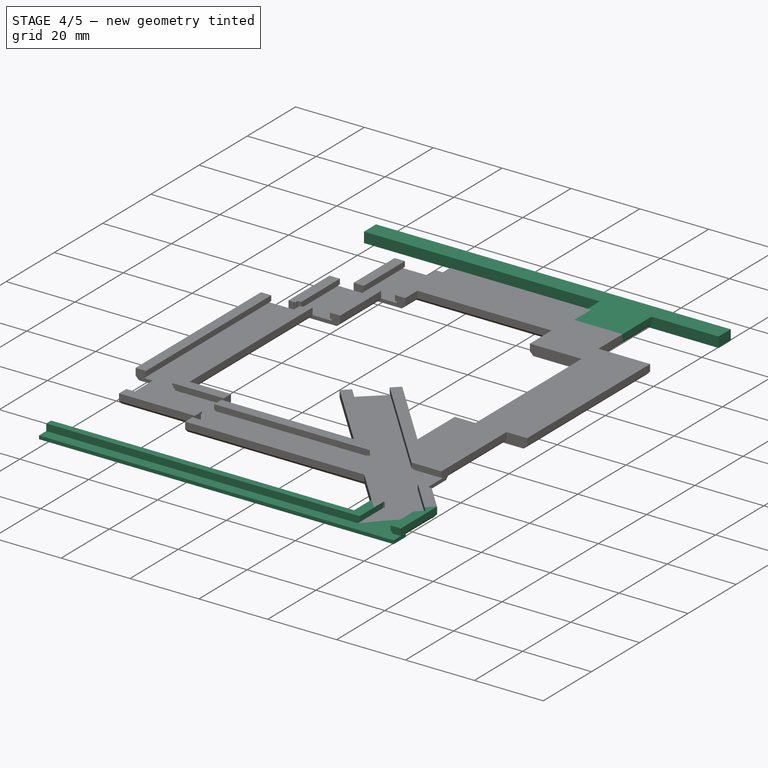
[diagram: stage 4 of 5 — iso view after this stage's code; geometry added in this stage tinted green]
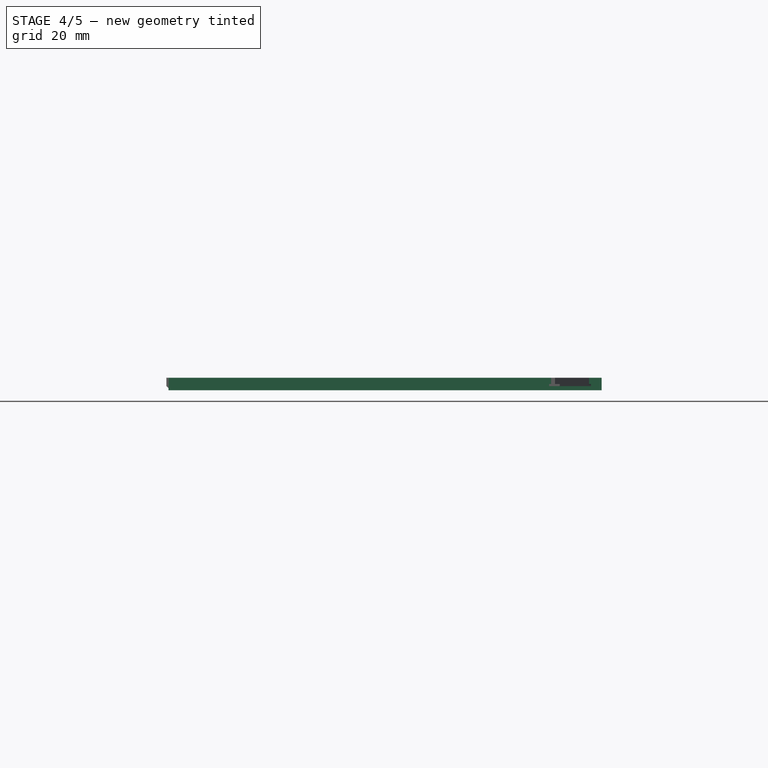
[diagram: stage 4 of 5 — front view after this stage's code; geometry added in this stage tinted green]
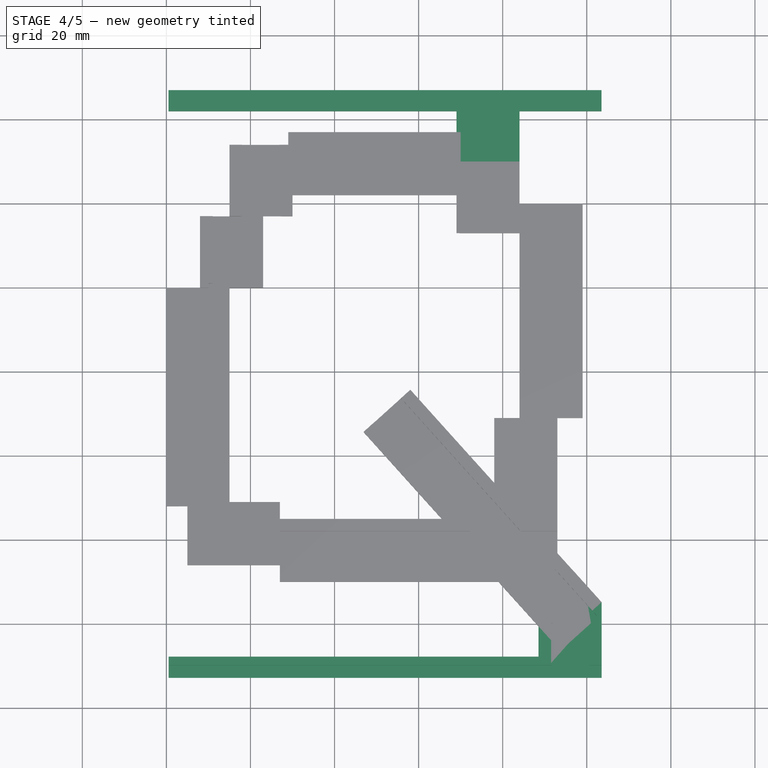
[diagram: stage 4 of 5 — top view after this stage's code; geometry added in this stage tinted green]
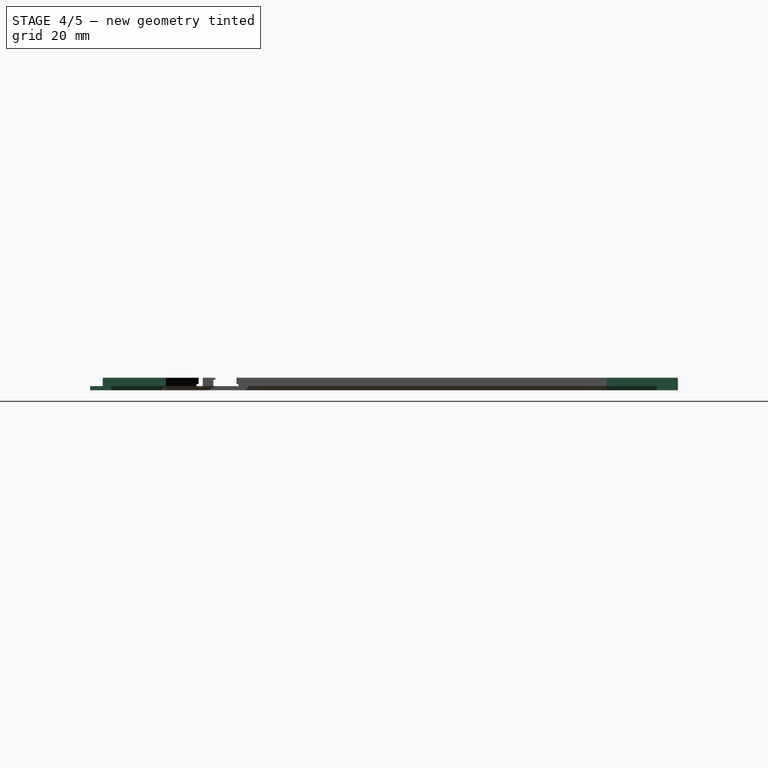
[diagram: stage 4 of 5 — right view after this stage's code; geometry added in this stage tinted green]
FEATURE [Sketcher::SketchObject] Sketch020
  ExternalGeometry = -> [Pocket007]
  FullyConstrained = true
  MapMode = 5
  Placement = pos=(0,30,0) rot=(-1,0,0;1.5708rad)
  Support = -> [Pocket007]
  sketch-geometry (6):
    g0: LineSegment StartX=70 StartY=3 StartZ=0 EndX=83 EndY=3 EndZ=0
    g1: LineSegment StartX=83 StartY=3 StartZ=0 EndX=84 EndY=2 EndZ=0
    g2: LineSegment StartX=84 StartY=2 StartZ=0 EndX=84 EndY=1.33e-14 EndZ=0
    g3: LineSegment StartX=84 StartY=1.33e-14 StartZ=0 EndX=69 EndY=1.33e-14 EndZ=0
    g4: LineSegment StartX=69 StartY=1.33e-14 StartZ=0 EndX=69 EndY=2 EndZ=0
    g5: LineSegment StartX=69 StartY=2 StartZ=0 EndX=70 EndY=3 EndZ=0
  constraints (17):
    c: Horizontal(g0)
    c: Coincident(g0,g1)
    c: Coincident(g1,g2)
    c: Vertical(g2)
    c: Coincident(g2,g3)
    c: Horizontal(g3)
    c: Coincident(g3,g4)
    c: Vertical(g4)
    c: Coincident(g4,g5)
    c: Coincident(g5,g0)
    c: Distance(g3) = 15
    c: Distance(g0) = 13
    c: DistanceY(g2,g2) = 2
    c: DistanceY(g4,g4) = 2
    c: DistanceY(g1,g0) = 1
    c: DistanceX(g0,g1) = 1
    c: Coincident(g2,g-3)
FEATURE [PartDesign::Pad] Pad012
  BaseFeature = -> Pocket007
  Direction = (0,1,2e-16)
  Length = 17
  Length2 = 10
  Placement = pos=(0,0,0) rot=(1,0,0;1.5708rad)
  Profile = -> Sketch020
  ReferenceAxis = -> Sketch020 [N_Axis]
  Type = 0
FEATURE [Sketcher::SketchObject] Sketch021
  AttachmentOffset = pos=(0,0,4.8) rot=(0,0,1;0rad)
  ExternalGeometry = -> [Pad012]
  FullyConstrained = true
  MapMode = 5
  Placement = pos=(0,-74.8,2.42e-14) rot=(1,0,0;1.5708rad)
  Support = -> [Pad012]
  sketch-geometry (6):
    g0: LineSegment StartX=88.5298 StartY=4.53e-14 StartZ=0 EndX=103.53 EndY=4.53e-14 EndZ=0
    g1: LineSegment StartX=103.53 StartY=4.53e-14 StartZ=0 EndX=103.53 EndY=-2 EndZ=0
    g2: LineSegment StartX=103.53 StartY=-2 StartZ=0 EndX=102.53 EndY=-3 EndZ=0
    g3: LineSegment StartX=102.53 StartY=-3 StartZ=0 EndX=89.5298 EndY=-3 EndZ=0
    g4: LineSegment StartX=89.5298 StartY=-3 StartZ=0 EndX=88.5298 EndY=-2 EndZ=0
    g5: LineSegment StartX=88.5298 StartY=-2 StartZ=0 EndX=88.5298 EndY=4.53e-14 EndZ=0
  constraints (17):
    c: Horizontal(g0)
    c: Coincident(g0,g1)
    c: Vertical(g1)
    c: Coincident(g1,g2)
    c: Coincident(g2,g3)
    c: Horizontal(g3)
    c: Coincident(g3,g4)
    c: Coincident(g4,g5)
    c: Coincident(g5,g0)
    c: Vertical(g5)
    c: Distance(g0) = 15
    c: DistanceX(g3,g3) = 13
    c: DistanceX(g2,g1) = 1
    c: DistanceY(g1,g0) = 2
    c: DistanceY(g2,g1) = 1
    c: DistanceY(g4,g0) = 2
    c: Coincident(g0,g-3)
FEATURE [PartDesign::Pad] Pad013
  BaseFeature = -> Pad012
  Direction = (0,-1,2e-16)
  Length = 18
  Length2 = 10
  Placement = pos=(0,0,0) rot=(1,0,0;1.5708rad)
  Profile = -> Sketch021
  ReferenceAxis = -> Sketch021 [N_Axis]
  Type = 0
FEATURE [Sketcher::SketchObject] Sketch022
  ExternalGeometry = -> [Pad013]
  FullyConstrained = true
  MapMode = 5
  Placement = pos=(38.0611,-42.2712,9.64e-14) rot=(-0.87885,-0.337359,0.337359;1.69958rad)
  Support = -> [Pad013]
  sketch-geometry (8):
    g0: LineSegment StartX=14.3693 StartY=2 StartZ=0 EndX=24.3693 EndY=2 EndZ=0
    g1: LineSegment StartX=24.3693 StartY=2 StartZ=0 EndX=24.3693 EndY=1.5 EndZ=0
    g2: LineSegment StartX=24.3693 StartY=1.5 StartZ=0 EndX=23.8693 EndY=1.5 EndZ=0
    g3: LineSegment StartX=23.8693 StartY=1.5 StartZ=0 EndX=23.8693 EndY=9.59e-14 EndZ=0
    g4: LineSegment StartX=23.8693 StartY=9.59e-14 StartZ=0 EndX=14.8693 EndY=9.59e-14 EndZ=0
    g5: LineSegment StartX=14.8693 StartY=9.59e-14 StartZ=0 EndX=14.8693 EndY=1.5 EndZ=0
    g6: LineSegment StartX=14.8693 StartY=1.5 StartZ=0 EndX=14.3693 EndY=1.5 EndZ=0
    g7: LineSegment StartX=14.3693 StartY=1.5 StartZ=0 EndX=14.3693 EndY=2 EndZ=0
  constraints (23):
    c: Horizontal(g0)
    c: Coincident(g0,g1)
    c: Vertical(g1)
    c: Coincident(g1,g2)
    c: Horizontal(g2)
    c: Coincident(g2,g3)
    c: Vertical(g3)
    c: Coincident(g3,g4)
    c: Horizontal(g4)
    c: Coincident(g4,g5)
    c: Vertical(g5)
    c: Coincident(g5,g6)
    c: Horizontal(g6)
    c: Coincident(g6,g7)
    c: Coincident(g7,g0)
    c: Vertical(g7)
    c: Distance(g0) = 10
    c: DistanceX(g6,g6) = 0.5
    c: DistanceX(g2,g1) = 0.5
    c: DistanceY(g1,g0) = 0.5
    c: DistanceY(g3,g2) = 1.5
    c: DistanceY(g6,g0) = 0.5
    c: Coincident(g0,g-3)
FEATURE [PartDesign::Pocket] Pocket008
  BaseFeature = -> Pad013
  Direction = (0.669131,-0.743145,1.6e-15)
  Length = 70
  Length2 = 5
  Placement = pos=(0,0,0) rot=(1,0,0;1.5708rad)
  Profile = -> Sketch022
  ReferenceAxis = -> Sketch022 [N_Axis]
  Type = 0
FEATURE [Sketcher::SketchObject] Sketch023
  AttachmentOffset = pos=(0,0,-15) rot=(0,0,1;0rad)
  ExternalGeometry = -> [Pocket008]
  FullyConstrained = true
  MapMode = 5
  Placement = pos=(103.53,0,3.3e-15) rot=(0.707107,0,-0.707107;3.14159rad)
  Support = -> [Pocket008]
  sketch-geometry (4):
    g0: LineSegment StartX=-7.37e-14 StartY=92.8 StartZ=0 EndX=3 EndY=92.8 EndZ=0
    g1: LineSegment StartX=3 StartY=92.8 StartZ=0 EndX=3 EndY=87.8 EndZ=0
    g2: LineSegment StartX=3 StartY=87.8 StartZ=0 EndX=-7.37e-14 EndY=87.8 EndZ=0
    g3: LineSegment StartX=-7.37e-14 StartY=87.8 StartZ=0 EndX=-7.37e-14 EndY=92.8 EndZ=0
  constraints (11):
    c: Coincident(g0,g1)
    c: Coincident(g1,g2)
    c: Coincident(g2,g3)
    c: Coincident(g3,g0)
    c: Horizontal(g0)
    c: Horizontal(g2)
    c: Vertical(g1)
    c: Vertical(g3)
    c: DistanceX(g0,g0) = 3
    c: DistanceY(g3,g3) = 5
    c: Coincident(g0,g-3)
FEATURE [PartDesign::Pad] Pad014
  BaseFeature = -> Pocket008
  Direction = (-1,0,-2e-16)
  Length = 103
  Length2 = 10
  Placement = pos=(0,0,0) rot=(1,0,0;1.5708rad)
  Profile = -> Sketch023
  ReferenceAxis = -> Sketch023 [N_Axis]
  Type = 0
FEATURE [Sketcher::SketchObject] Sketch024
  ExternalGeometry = -> [Pad014]
  FullyConstrained = true
  MapMode = 5
  Placement = pos=(0,-92.8,3.09e-14) rot=(1,0,0;1.5708rad)
  Support = -> [Pad014]
  sketch-geometry (8):
    g0: LineSegment StartX=91.0298 StartY=-2 StartZ=0 EndX=101.03 EndY=-2 EndZ=0
    g1: LineSegment StartX=101.03 StartY=-2 StartZ=0 EndX=101.03 EndY=-1.5 EndZ=0
    g2: LineSegment StartX=101.03 StartY=-1.5 StartZ=0 EndX=100.53 EndY=-1.5 EndZ=0
    g3: LineSegment StartX=100.53 StartY=-1.5 StartZ=0 EndX=100.53 EndY=7.37e-14 EndZ=0
    g4: LineSegment StartX=100.53 StartY=7.37e-14 StartZ=0 EndX=91.5298 EndY=7.37e-14 EndZ=0
    g5: LineSegment StartX=91.5298 StartY=7.37e-14 StartZ=0 EndX=91.5298 EndY=-1.5 EndZ=0
    g6: LineSegment StartX=91.5298 StartY=-1.5 StartZ=0 EndX=91.0298 EndY=-1.5 EndZ=0
    g7: LineSegment StartX=91.0298 StartY=-1.5 StartZ=0 EndX=91.0298 EndY=-2 EndZ=0
  constraints (24):
    c: Horizontal(g0)
    c: Coincident(g0,g1)
    c: Vertical(g1)
    c: Coincident(g1,g2)
    c: Horizontal(g2)
    c: Coincident(g2,g3)
    c: Vertical(g3)
    c: Coincident(g3,g4)
    c: Horizontal(g4)
    c: Coincident(g4,g5)
    c: Vertical(g5)
    c: Coincident(g5,g6)
    c: Horizontal(g6)
    c: Coincident(g6,g7)
    c: Coincident(g7,g0)
    c: Vertical(g7)
    c: Distance(g0) = 10
    c: DistanceY(g0,g6) = 0.5
    c: DistanceX(g6,g5) = 0.5
    c: DistanceY(g5,g4) = 1.5
    c: DistanceY(g0,g1) = 0.5
    c: DistanceX(g2,g1) = 0.5
    c: DistanceX(g-3,g4) = 3
    c: DistanceY(g-3,g4) = 0
FEATURE [PartDesign::Pocket] Pocket009
  BaseFeature = -> Pad014
  Direction = (0,1,-2e-16)
  Length = 13
  Length2 = 5
  Placement = pos=(0,0,0) rot=(1,0,0;1.5708rad)
  Profile = -> Sketch024
  ReferenceAxis = -> Sketch024 [N_Axis]
  Type = 0
FEATURE [Sketcher::SketchObject] Sketch025
  ExternalGeometry = -> [Pocket009]
  FullyConstrained = true
  MapMode = 5
  Placement = pos=(0.529785,0,0) rot=(0.707107,0,-0.707107;3.14159rad)
  Support = -> [Pocket009]
  sketch-geometry (4):
    g0: LineSegment StartX=-7.46e-14 StartY=92.8 StartZ=0 EndX=2 EndY=92.8 EndZ=0
    g1: LineSegment StartX=2 StartY=92.8 StartZ=0 EndX=2 EndY=89.8 EndZ=0
    g2: LineSegment StartX=2 StartY=89.8 StartZ=0 EndX=-7.46e-14 EndY=89.8 EndZ=0
    g3: LineSegment StartX=-7.46e-14 StartY=89.8 StartZ=0 EndX=-7.46e-14 EndY=92.8 EndZ=0
  constraints (11):
    c: Coincident(g0,g1)
    c: Coincident(g1,g2)
    c: Coincident(g2,g3)
    c: Coincident(g3,g0)
    c: Horizontal(g0)
    c: Horizontal(g2)
    c: Vertical(g1)
    c: Vertical(g3)
    c: DistanceX(g0,g0) = 2
    c: DistanceY(g3,g3) = 3
    c: Coincident(g-3,g0)
FEATURE [PartDesign::Pocket] Pocket010
  BaseFeature = -> Pocket009
  Direction = (1,0,2e-16)
  Length = 103
  Length2 = 5
  Placement = pos=(0,0,0) rot=(1,0,0;1.5708rad)
  Profile = -> Sketch025
  ReferenceAxis = -> Sketch025 [N_Axis]
  Type = 0
FEATURE [Sketcher::SketchObject] Sketch026
  AttachmentOffset = pos=(0,0,-83.5) rot=(0,0,1;0rad)
  ExternalGeometry = -> [Pocket010]
  FullyConstrained = true
  MapMode = 5
  Placement = pos=(0.5,0,1.85e-14) rot=(0.707107,0,0.707107;3.14159rad)
  Support = -> [Pocket010]
  sketch-geometry (4):
    g0: LineSegment StartX=-3 StartY=-42 StartZ=0 EndX=-3.02e-14 EndY=-42 EndZ=0
    g1: LineSegment StartX=-3.02e-14 StartY=-42 StartZ=0 EndX=-3.02e-14 EndY=-47 EndZ=0
    g2: LineSegment StartX=-3.02e-14 StartY=-47 StartZ=0 EndX=-3 EndY=-47 EndZ=0
    g3: LineSegment StartX=-3 StartY=-47 StartZ=0 EndX=-3 EndY=-42 EndZ=0
  constraints (11):
    c: Coincident(g0,g1)
    c: Coincident(g1,g2)
    c: Coincident(g2,g3)
    c: Coincident(g3,g0)
    c: Horizontal(g0)
    c: Horizontal(g2)
    c: Vertical(g1)
    c: Vertical(g3)
    c: DistanceY(g1,g1) = 5
    c: DistanceX(g2,g1) = 3
    c: Coincident(g-3,g1)
FEATURE [PartDesign::Pad] Pad015
  BaseFeature = -> Pocket010
  Direction = (1,0,-2e-16)
  Length = 103
  Length2 = 10
  Placement = pos=(0,0,0) rot=(1,0,0;1.5708rad)
  Profile = -> Sketch026
  ReferenceAxis = -> Sketch026 [N_Axis]
  Type = 0
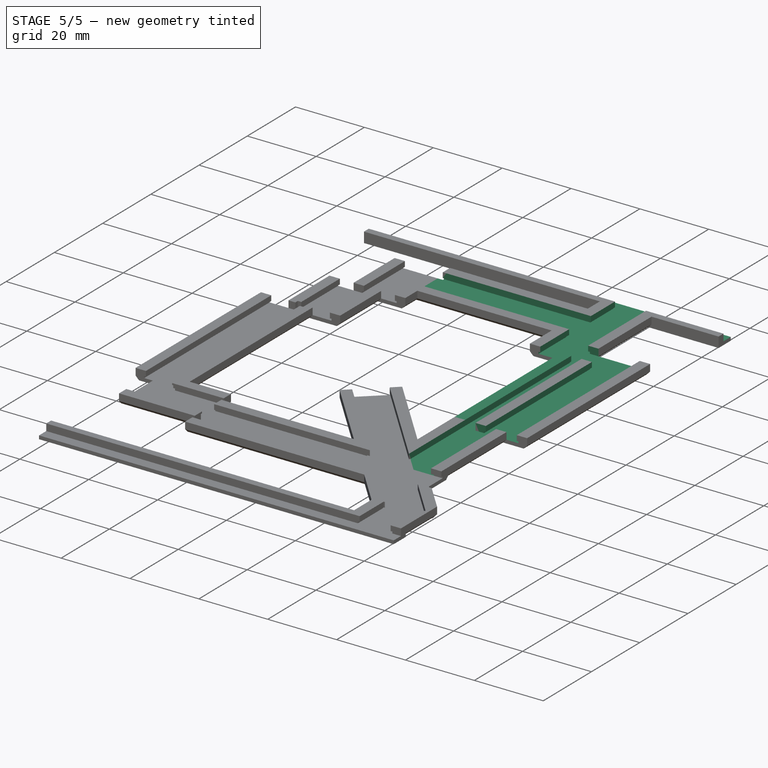
[diagram: stage 5 of 5 — iso view after this stage's code; geometry added in this stage tinted green]
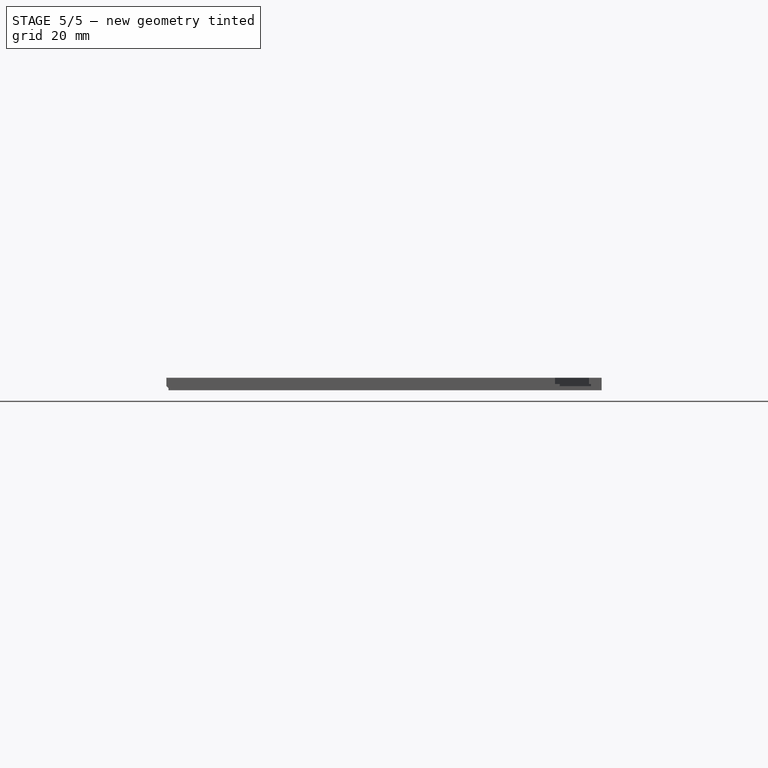
[diagram: stage 5 of 5 — front view after this stage's code; geometry added in this stage tinted green]
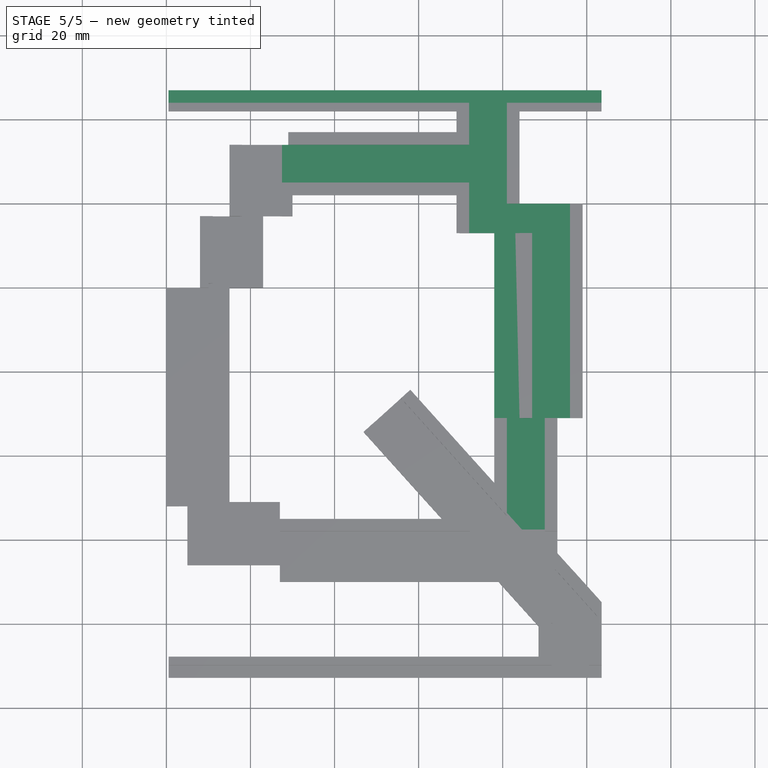
[diagram: stage 5 of 5 — top view after this stage's code; geometry added in this stage tinted green]
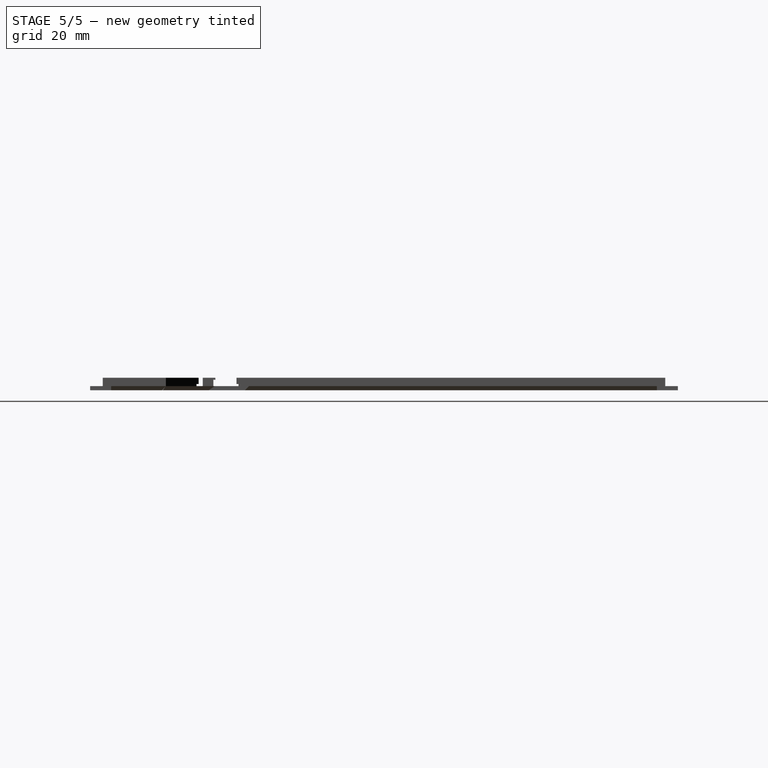
[diagram: stage 5 of 5 — right view after this stage's code; geometry added in this stage tinted green]
FEATURE [Sketcher::SketchObject] Sketch027
  ExternalGeometry = -> [Pad015]
  FullyConstrained = true
  MapMode = 5
  Placement = pos=(103.5,0,-2.3e-14) rot=(0.707107,0,0.707107;3.14159rad)
  Support = -> [Pad015]
  sketch-geometry (4):
    g0: LineSegment StartX=-2 StartY=-44 StartZ=0 EndX=-1.6e-14 EndY=-44 EndZ=0
    g1: LineSegment StartX=-1.6e-14 StartY=-44 StartZ=0 EndX=-1.6e-14 EndY=-47 EndZ=0
    g2: LineSegment StartX=-1.6e-14 StartY=-47 StartZ=0 EndX=-2 EndY=-47 EndZ=0
    g3: LineSegment StartX=-2 StartY=-47 StartZ=0 EndX=-2 EndY=-44 EndZ=0
  constraints (11):
    c: Coincident(g0,g1)
    c: Coincident(g1,g2)
    c: Coincident(g2,g3)
    c: Coincident(g3,g0)
    c: Horizontal(g0)
    c: Horizontal(g2)
    c: Vertical(g1)
    c: Vertical(g3)
    c: DistanceY(g1,g1) = 3
    c: DistanceX(g0,g0) = 2
    c: Coincident(g-3,g1)
FEATURE [PartDesign::Pocket] Pocket011
  BaseFeature = -> Pad015
  Direction = (-1,0,2e-16)
  Length = 103
  Length2 = 5
  Placement = pos=(0,0,0) rot=(1,0,0;1.5708rad)
  Profile = -> Sketch027
  ReferenceAxis = -> Sketch027 [N_Axis]
  Type = 0
FEATURE [Sketcher::SketchObject] Sketch028
  ExternalGeometry = -> [Pocket011]
  FullyConstrained = true
  MapMode = 5
  Placement = pos=(0,13,-1.15e-14) rot=(1,0,0;1.5708rad)
  Support = -> [Pocket011]
  sketch-geometry (8):
    g0: LineSegment StartX=71.5 StartY=-2 StartZ=0 EndX=81.5 EndY=-2 EndZ=0
    g1: LineSegment StartX=81.5 StartY=-2 StartZ=0 EndX=81.5 EndY=-1.5 EndZ=0
    g2: LineSegment StartX=81.5 StartY=-1.5 StartZ=0 EndX=81 EndY=-1.5 EndZ=0
    g3: LineSegment StartX=81 StartY=-1.5 StartZ=0 EndX=81 EndY=-1.07e-14 EndZ=0
    g4: LineSegment StartX=81 StartY=-1.07e-14 StartZ=0 EndX=72 EndY=-1.07e-14 EndZ=0
    g5: LineSegment StartX=72 StartY=-1.07e-14 StartZ=0 EndX=72 EndY=-1.5 EndZ=0
    g6: LineSegment StartX=72 StartY=-1.5 StartZ=0 EndX=71.5 EndY=-1.5 EndZ=0
    g7: LineSegment StartX=71.5 StartY=-1.5 StartZ=0 EndX=71.5 EndY=-2 EndZ=0
  constraints (24):
    c: Horizontal(g0)
    c: Coincident(g0,g1)
    c: Vertical(g1)
    c: Coincident(g1,g2)
    c: Coincident(g2,g3)
    c: Vertical(g3)
    c: Coincident(g3,g4)
    c: Horizontal(g4)
    c: Coincident(g4,g5)
    c: Coincident(g5,g6)
    c: Horizontal(g6)
    c: Coincident(g6,g7)
    c: Coincident(g7,g0)
    c: Vertical(g7)
    c: Horizontal(g2)
    c: DistanceX(g6,g6) = 0.5
    c: Vertical(g5)
    c: DistanceY(g0,g6) = 0.5
    c: DistanceY(g1,g1) = 0.5
    c: DistanceY(g3,g3) = 1.5
    c: Distance(g0) = 10
    c: DistanceX(g3,g1) = 0.5
    c: DistanceX(g-3,g4) = 3
    c: DistanceY(g-3,g4) = 0
FEATURE [PartDesign::Pocket] Pocket012
  BaseFeature = -> Pocket011
  Direction = (0,1,-7e-16)
  Length = 31
  Length2 = 5
  Placement = pos=(0,0,0) rot=(1,0,0;1.5708rad)
  Profile = -> Sketch028
  ReferenceAxis = -> Sketch028 [N_Axis]
  Type = 0
FEATURE [Sketcher::SketchObject] Sketch029
  AttachmentOffset = pos=(0,0,2) rot=(0,0,1;0rad)
  ExternalGeometry = -> [Pocket012]
  FullyConstrained = true
  MapMode = 5
  Placement = pos=(27,0,-4e-16) rot=(0.707107,0,-0.707107;3.14159rad)
  Support = -> [Pocket012]
  sketch-geometry (8):
    g0: LineSegment StartX=2 StartY=-24.5 StartZ=0 EndX=2 EndY=-34.5 EndZ=0
    g1: LineSegment StartX=2 StartY=-34.5 StartZ=0 EndX=1.5 EndY=-34.5 EndZ=0
    g2: LineSegment StartX=1.5 StartY=-34.5 StartZ=0 EndX=1.5 EndY=-34 EndZ=0
    g3: LineSegment StartX=1.5 StartY=-34 StartZ=0 EndX=3.42e-14 EndY=-34 EndZ=0
    g4: LineSegment StartX=3.42e-14 StartY=-34 StartZ=0 EndX=3.42e-14 EndY=-25 EndZ=0
    g5: LineSegment StartX=3.42e-14 StartY=-25 StartZ=0 EndX=1.5 EndY=-25 EndZ=0
    g6: LineSegment StartX=1.5 StartY=-25 StartZ=0 EndX=1.5 EndY=-24.5 EndZ=0
    g7: LineSegment StartX=1.5 StartY=-24.5 StartZ=0 EndX=2 EndY=-24.5 EndZ=0
  constraints (24):
    c: Vertical(g0)
    c: Coincident(g0,g1)
    c: Horizontal(g1)
    c: Coincident(g1,g2)
    c: Vertical(g2)
    c: Coincident(g2,g3)
    c: Horizontal(g3)
    c: Coincident(g3,g4)
    c: Vertical(g4)
    c: Coincident(g4,g5)
    c: Horizontal(g5)
    c: Coincident(g5,g6)
    c: Vertical(g6)
    c: Coincident(g6,g7)
    c: Coincident(g7,g0)
    c: Horizontal(g7)
    c: Distance(g0) = 10
    c: DistanceY(g6,g6) = 0.5
    c: DistanceY(g2,g2) = 0.5
    c: DistanceX(g7,g7) = 0.5
    c: DistanceX(g1,g1) = 0.5
    c: DistanceX(g3,g2) = 1.5
    c: DistanceY(g-3,g3) = 3
    c: DistanceX(g3,g-3) = 0
FEATURE [PartDesign::Pocket] Pocket013
  BaseFeature = -> Pocket012
  Direction = (1,0,2e-16)
  Length = 45
  Length2 = 5
  Placement = pos=(0,0,0) rot=(1,0,0;1.5708rad)
  Profile = -> Sketch029
  ReferenceAxis = -> Sketch029 [N_Axis]
  Type = 0
FEATURE [Sketcher::SketchObject] Sketch030
  ExternalGeometry = -> [Pocket013]
  FullyConstrained = true
  MapMode = 5
  Placement = pos=(0,-31,3.44e-14) rot=(-1,0,0;1.5708rad)
  Support = -> [Pocket013]
  sketch-geometry (8):
    g0: LineSegment StartX=80.5 StartY=2 StartZ=0 EndX=90.5 EndY=2 EndZ=0
    g1: LineSegment StartX=90.5 StartY=2 StartZ=0 EndX=90.5 EndY=1.5 EndZ=0
    g2: LineSegment StartX=90.5 StartY=1.5 StartZ=0 EndX=90 EndY=1.5 EndZ=0
    g3: LineSegment StartX=90 StartY=1.5 StartZ=0 EndX=90 EndY=5.3e-15 EndZ=0
    g4: LineSegment StartX=90 StartY=5.3e-15 StartZ=0 EndX=81 EndY=5.3e-15 EndZ=0
    g5: LineSegment StartX=81 StartY=5.3e-15 StartZ=0 EndX=81 EndY=1.5 EndZ=0
    g6: LineSegment StartX=81 StartY=1.5 StartZ=0 EndX=80.5 EndY=1.5 EndZ=0
    g7: LineSegment StartX=80.5 StartY=1.5 StartZ=0 EndX=80.5 EndY=2 EndZ=0
  constraints (24):
    c: Horizontal(g0)
    c: Coincident(g0,g1)
    c: Vertical(g1)
    c: Coincident(g1,g2)
    c: Horizontal(g2)
    c: Coincident(g2,g3)
    c: Vertical(g3)
    c: Coincident(g3,g4)
    c: Horizontal(g4)
    c: Coincident(g4,g5)
    c: Vertical(g5)
    c: Coincident(g5,g6)
    c: Horizontal(g6)
    c: Coincident(g6,g7)
    c: Coincident(g7,g0)
    c: Vertical(g7)
    c: Distance(g0) = 10
    c: DistanceY(g1,g1) = 0.5
    c: DistanceY(g7,g7) = 0.5
    c: DistanceY(g5,g5) = 1.5
    c: DistanceX(g6,g5) = 0.5
    c: DistanceX(g2,g1) = 0.5
    c: DistanceX(g-3,g4) = 3
    c: DistanceY(g4,g-3) = 0
FEATURE [PartDesign::Pocket] Pocket014
  BaseFeature = -> Pocket013
  Direction = (0,-1,1.1e-15)
  Length = 28
  Length2 = 5
  Placement = pos=(0,0,0) rot=(1,0,0;1.5708rad)
  Profile = -> Sketch030
  ReferenceAxis = -> Sketch030 [N_Axis]
  Type = 0
FEATURE [Sketcher::SketchObject] Sketch031
  ExternalGeometry = -> [Pocket014]
  FullyConstrained = true
  MapMode = 5
  Placement = pos=(0,-31,3.79e-14) rot=(-1,0,0;1.5708rad)
  Support = -> [Pocket014]
  sketch-geometry (9):
    g0: LineSegment StartX=78 StartY=2 StartZ=0 EndX=79 EndY=3 EndZ=0
    g1: LineSegment StartX=79 StartY=3 StartZ=0 EndX=85 EndY=3 EndZ=0
    g2: LineSegment StartX=85 StartY=3 StartZ=0 EndX=85 EndY=2 EndZ=0
    g3: LineSegment StartX=85 StartY=2 StartZ=0 EndX=80.5 EndY=2 EndZ=0
    g4: LineSegment StartX=80.5 StartY=2 StartZ=0 EndX=80.5 EndY=1.5 EndZ=0
    g5: LineSegment StartX=80.5 StartY=1.5 StartZ=0 EndX=81 EndY=1.5 EndZ=0
    g6: LineSegment StartX=81 StartY=1.5 StartZ=0 EndX=81 EndY=5.3e-15 EndZ=0
    g7: LineSegment StartX=81 StartY=5.3e-15 StartZ=0 EndX=78 EndY=5.3e-15 EndZ=0
    g8: LineSegment StartX=78 StartY=5.3e-15 StartZ=0 EndX=78 EndY=2 EndZ=0
  constraints (22):
    c: Coincident(g0,g1)
    c: Coincident(g1,g2)
    c: Vertical(g2)
    c: Coincident(g2,g3)
    c: Coincident(g3,g4)
    c: Coincident(g4,g5)
    c: Coincident(g5,g6)
    c: Coincident(g6,g7)
    c: Horizontal(g7)
    c: Coincident(g7,g8)
    c: Coincident(g8,g0)
    c: Vertical(g8)
    c: Horizontal(g3)
    c: Vertical(g4)
    c: Coincident(g0,g-4)
    c: Coincident(g0,g-5)
    c: Coincident(g-8,g4)
    c: Coincident(g3,g-6)
    c: DistanceY(g4,g3) = 0.5
    c: Coincident(g5,g-8)
    c: Coincident(g6,g-7)
    c: Coincident(g1,g-5)
FEATURE [PartDesign::Pad] Pad016
  BaseFeature = -> Pocket014
  Direction = (0,1,-1.1e-15)
  Length = 44
  Length2 = 10
  Placement = pos=(0,0,0) rot=(1,0,0;1.5708rad)
  Profile = -> Sketch031
  ReferenceAxis = -> Sketch031 [N_Axis]
  Type = 0
FEATURE [Sketcher::SketchObject] Sketch032
  ExternalGeometry = -> [Pad016]
  FullyConstrained = true
  MapMode = 5
  Placement = pos=(0,20,-2.66e-14) rot=(-1,0,0;1.5708rad)
  Support = -> [Pad016]
  sketch-geometry (8):
    g0: LineSegment StartX=86.5 StartY=2 StartZ=0 EndX=96.5 EndY=2 EndZ=0
    g1: LineSegment StartX=96.5 StartY=2 StartZ=0 EndX=96.5 EndY=1.5 EndZ=0
    g2: LineSegment StartX=96.5 StartY=1.5 StartZ=0 EndX=96 EndY=1.5 EndZ=0
    g3: LineSegment StartX=96 StartY=1.5 StartZ=0 EndX=96 EndY=4.7e-15 EndZ=0
    g4: LineSegment StartX=96 StartY=4.7e-15 StartZ=0 EndX=87 EndY=4.7e-15 EndZ=0
    g5: LineSegment StartX=87 StartY=4.7e-15 StartZ=0 EndX=87 EndY=1.5 EndZ=0
    g6: LineSegment StartX=87 StartY=1.5 StartZ=0 EndX=86.5 EndY=1.5 EndZ=0
    g7: LineSegment StartX=86.5 StartY=1.5 StartZ=0 EndX=86.5 EndY=2 EndZ=0
  constraints (24):
    c: Horizontal(g0)
    c: Coincident(g0,g1)
    c: Vertical(g1)
    c: Coincident(g1,g2)
    c: Horizontal(g2)
    c: Coincident(g2,g3)
    c: Vertical(g3)
    c: Coincident(g3,g4)
    c: Horizontal(g4)
    c: Coincident(g4,g5)
    c: Vertical(g5)
    c: Coincident(g5,g6)
    c: Horizontal(g6)
    c: Coincident(g6,g7)
    c: Coincident(g7,g0)
    c: Vertical(g7)
    c: DistanceY(g7,g7) = 0.5
    c: DistanceY(g1,g1) = 0.5
    c: DistanceY(g3,g3) = 1.5
    c: DistanceX(g2,g1) = 0.5
    c: DistanceX(g6,g6) = 0.5
    c: Distance(g0) = 10
    c: DistanceX(g3,g-3) = 3
    c: DistanceY(g-3,g3) = 0
FEATURE [PartDesign::Pocket] Pocket015
  BaseFeature = -> Pad016
  Direction = (0,-1,1.4e-15)
  Length = 51
  Length2 = 5
  Placement = pos=(0,0,0) rot=(1,0,0;1.5708rad)
  Profile = -> Sketch032
  ReferenceAxis = -> Sketch032 [N_Axis]
  Type = 0
FEATURE [Sketcher::SketchObject] Sketch033
  ExternalGeometry = -> [Pocket015]
  FullyConstrained = true
  MapMode = 5
  Placement = pos=(0,0,-8e-15) rot=(0,0,1;3.14159rad)
  Support = -> [Pocket015]
  sketch-geometry (4):
    g0: LineSegment StartX=-87 StartY=-13 StartZ=0 EndX=-81 EndY=-13 EndZ=0
    g1: LineSegment StartX=-81 StartY=-13 StartZ=0 EndX=-81 EndY=-20 EndZ=0
    g2: LineSegment StartX=-81 StartY=-20 StartZ=0 EndX=-87 EndY=-20 EndZ=0
    g3: LineSegment StartX=-87 StartY=-20 StartZ=0 EndX=-87 EndY=-13 EndZ=0
  constraints (10):
    c: Coincident(g0,g1)
    c: Coincident(g1,g2)
    c: Coincident(g2,g3)
    c: Coincident(g3,g0)
    c: Horizontal(g0)
    c: Horizontal(g2)
    c: Vertical(g1)
    c: Vertical(g3)
    c: Coincident(g2,g-4)
    c: Coincident(g0,g-3)
FEATURE [PartDesign::Pocket] Pocket016
  BaseFeature = -> Pocket015
  Direction = (0,-1.6e-15,-1)
  Length = 2
  Length2 = 5
  Placement = pos=(0,0,0) rot=(1,0,0;1.5708rad)
  Profile = -> Sketch033
  ReferenceAxis = -> Sketch033 [N_Axis]
  Type = 0
FEATURE [PartDesign::Body] Body
  Group = -> [Sketch,Pad,Sketch001,Pad001,Sketch002,Pad002,Sketch003,Sketch004,Pad003,Pad004,Sketch005,Pad005,Sketch006,Pad006,Sketch007,Pad007,Sketch008,Pad008,Sketch009,Pad009,Sketch010,Pad010,Sketch011,Pocket,Sketch012,Pad011,Sketch013,Pocket001,Sketch014,Pocket002,Sketch015,Pocket003,Sketch016,Pocket004,Sketch017,Pocket005,Sketch018,Pocket006,Sketch019,Pocket007,Sketch020,Pad012,Sketch021,Pad013,Sketch022,+23 more]
  Origin = -> Origin
  Tip = -> Pocket016
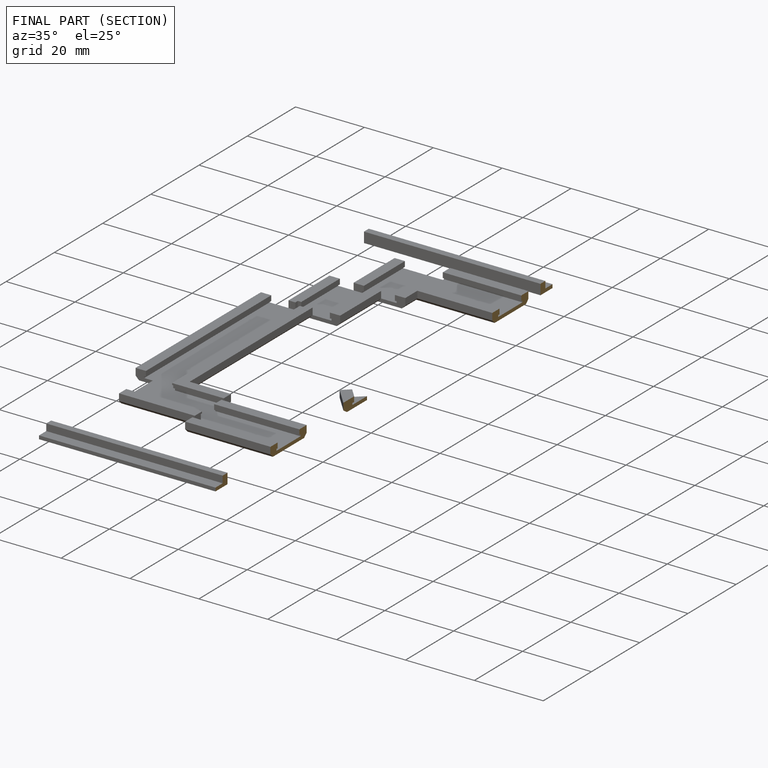
[diagram: finished part — half-section view (interior)]
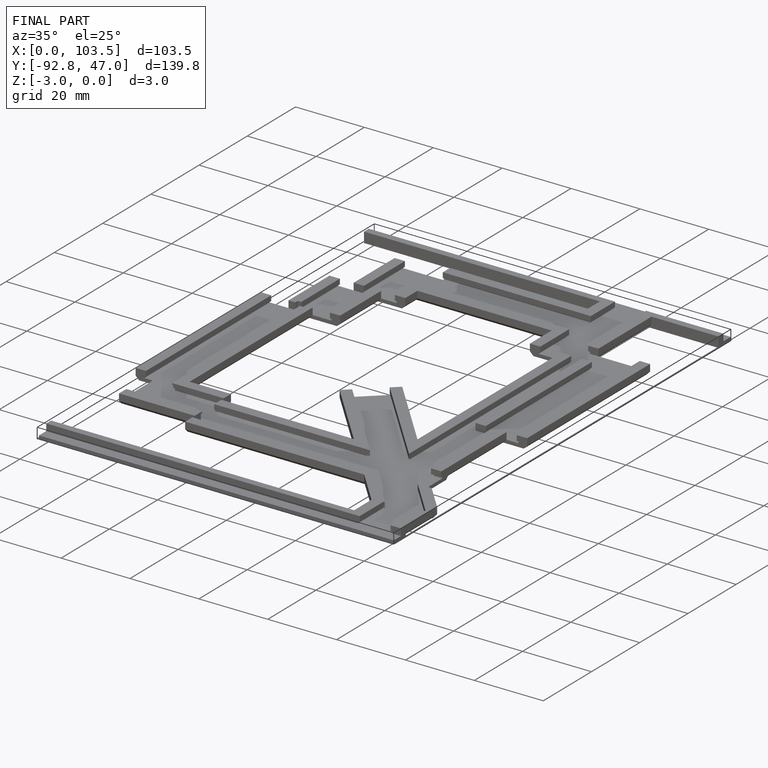
[diagram: finished part — iso view with bounding-box wireframe]
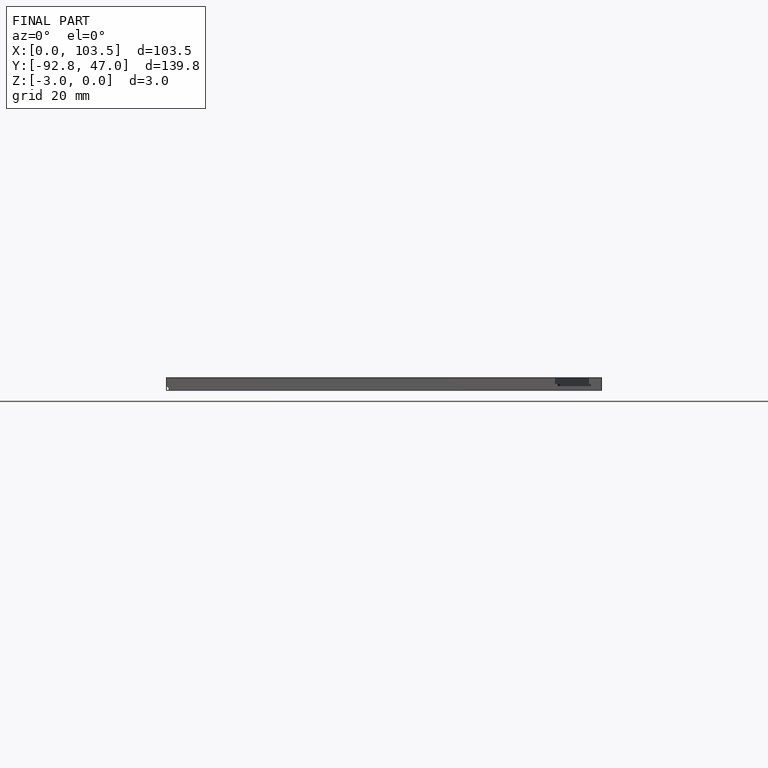
[diagram: finished part — front view with bounding-box wireframe]
